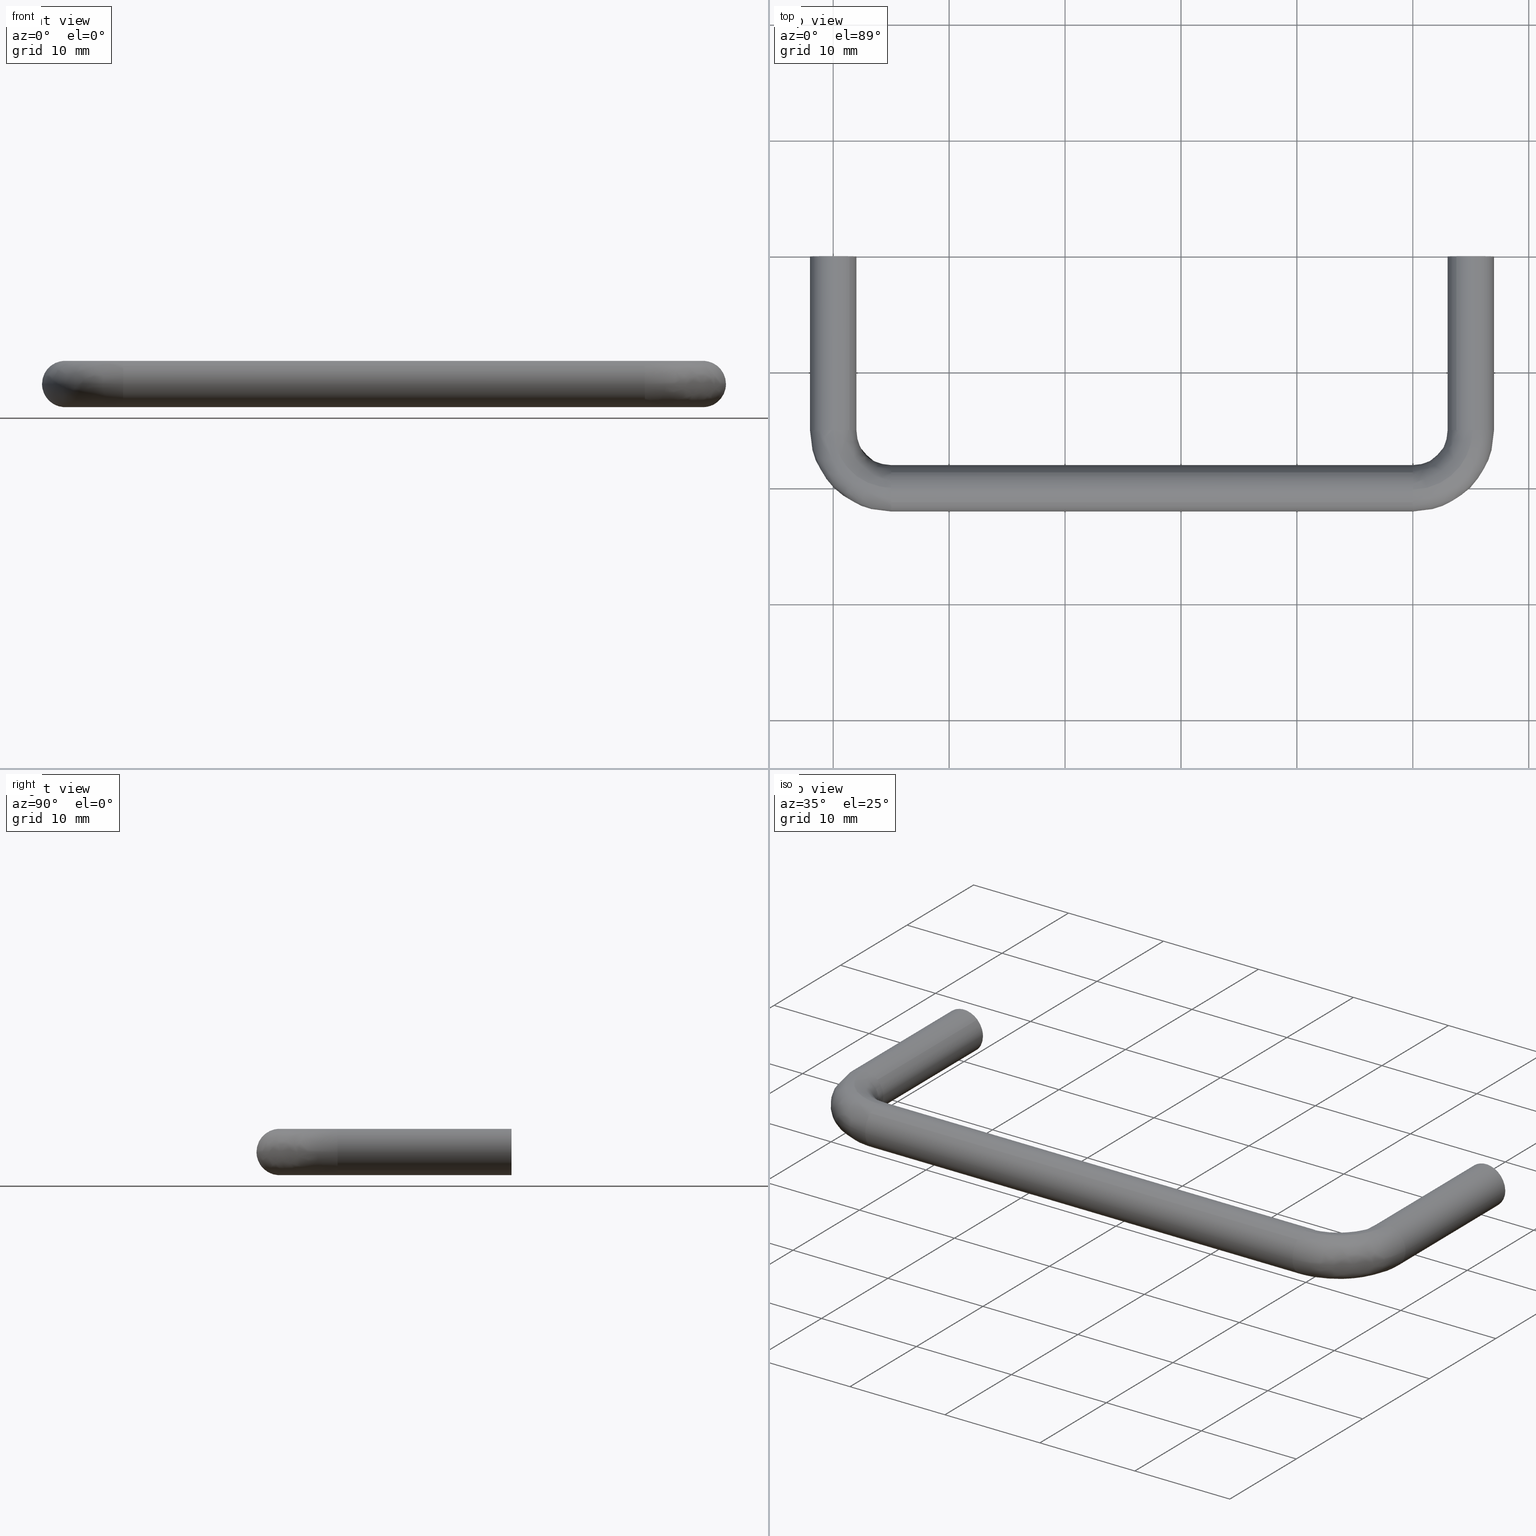
[diagram: canonical four-view strip — front | top / right | iso, engineering-drawing reading convention]
A machine part, canonical four-view strip (front | top / right | iso — engineering-drawing reading convention). The complete STEP part file that produces these views, byte-faithful:
ISO-10303-21;
HEADER;
/****************************************************************
 * Generated by software with PDE/Lib inside                    *
 * PDElib Version 4.4.1-0003, patched  Thursday August 19 11:58 *
 * International Technegroup Inc. (www.iti-oh.com)              *
 ****************************************************************/
FILE_DESCRIPTION((''),'2;1');
FILE_NAME('','2005-10-07T12:40:04',(''),(''),'','CADfix','');
FILE_SCHEMA(('AUTOMOTIVE_DESIGN'));
ENDSEC;
DATA;
#5=APPLICATION_CONTEXT('automotive design');
#6=APPLICATION_PROTOCOL_DEFINITION('Draft International Standard','automotive_design',1998,#5);
#7=PRODUCT_CONTEXT('None',#5,'mechanical');
#8=PRODUCT('pull','','None',(#7));
#9=PRODUCT_RELATED_PRODUCT_CATEGORY('part','description',(#8));
#10=PRODUCT_DEFINITION_FORMATION('None','None',#8);
#11=PRODUCT_DEFINITION_CONTEXT('part definition',#5,'design');
#12=PRODUCT_DEFINITION('None','None',#10,#11);
#18=(NAMED_UNIT(*)PLANE_ANGLE_UNIT()SI_UNIT($,.RADIAN.));
#19=DIMENSIONAL_EXPONENTS(0.0,0.0,0.0,0.0,0.0,0.0,0.0);
#20=PLANE_ANGLE_MEASURE_WITH_UNIT(PLANE_ANGLE_MEASURE(0.017453292500000),#18);
#24=(CONVERSION_BASED_UNIT('DEGREE',#20)NAMED_UNIT(#19)PLANE_ANGLE_UNIT());
#28=(NAMED_UNIT(*)SI_UNIT($,.STERADIAN.)SOLID_ANGLE_UNIT());
#32=(LENGTH_UNIT()NAMED_UNIT(*)SI_UNIT(.MILLI.,.METRE.));
#34=UNCERTAINTY_MEASURE_WITH_UNIT(LENGTH_MEASURE(0.001000000000000),#32,'DISTANCE_ACCURACY_VALUE','');
#36=(GEOMETRIC_REPRESENTATION_CONTEXT(3)GLOBAL_UNCERTAINTY_ASSIGNED_CONTEXT((#34))GLOBAL_UNIT_ASSIGNED_CONTEXT((#24,#28,#32))REPRESENTATION_CONTEXT('None','None'));
#37=AXIS2_PLACEMENT_3D('',#38,#39,#40);
#38=CARTESIAN_POINT('',(0.0,0.0,0.0));
#39=DIRECTION('',(0.0,0.0,1.0));
#40=DIRECTION('',(1.0,0.0,0.0));
#41=ADVANCED_BREP_SHAPE_REPRESENTATION('',(#37,#1355),#36);
#42=PRODUCT_DEFINITION_SHAPE('','',#12);
#43=SHAPE_DEFINITION_REPRESENTATION(#42,#41);
#44=CARTESIAN_POINT('',(-1.295992533853066,-10.250000000000000,0.101996824446199));
#45=CARTESIAN_POINT('',(-1.193995709406867,-10.250000000000002,1.397989358299265));
#46=CARTESIAN_POINT('',(0.101996824446199,-10.250000000000000,1.295992533853066));
#47=CARTESIAN_POINT('',(1.397989358299265,-10.250000000000002,1.193995709406867));
#48=CARTESIAN_POINT('',(1.295992533853066,-10.250000000000000,-0.101996824446199));
#49=CARTESIAN_POINT('',(-1.295992533853066,0.256250000000001,0.101996824446199));
#50=CARTESIAN_POINT('',(-1.193995709406867,0.256250000000001,1.397989358299265));
#51=CARTESIAN_POINT('',(0.101996824446199,0.256250000000001,1.295992533853066));
#52=CARTESIAN_POINT('',(1.397989358299265,0.256250000000001,1.193995709406867));
#53=CARTESIAN_POINT('',(1.295992533853066,0.256250000000001,-0.101996824446199));
#61=(BOUNDED_SURFACE()B_SPLINE_SURFACE(2,1,((#44,#49),(#45,#50),(#46,#51),(#47,#52),(#48,#53)),.UNSPECIFIED.,.F.,.F.,.U.)B_SPLINE_SURFACE_WITH_KNOTS((3,2,3),(2,2),(3.141592653589793,4.712388980384690,6.283185307179586),(0.0,10.506250000000000),.UNSPECIFIED.)GEOMETRIC_REPRESENTATION_ITEM()RATIONAL_B_SPLINE_SURFACE(((1.0,1.0),(0.707106781186548,0.707106781186548),(1.0,1.0),(0.707106781186548,0.707106781186548),(1.0,1.0)))REPRESENTATION_ITEM('')SURFACE());
#62=CARTESIAN_POINT('',(0.0,-10.0,1.300000000000000));
#63=VERTEX_POINT('',#62);
#64=CARTESIAN_POINT('',(-1.295992533838309,-10.0,0.101996824633710));
#65=VERTEX_POINT('',#64);
#66=CARTESIAN_POINT('',(0.0,-10.0,1.300000000000000));
#67=CARTESIAN_POINT('',(-1.201707638806856,-10.0,1.300000000000000));
#68=CARTESIAN_POINT('',(-1.295992533838309,-10.0,0.101996824633709));
#76=(BOUNDED_CURVE()B_SPLINE_CURVE(2,(#66,#67,#68),.UNSPECIFIED.,.F.,.U.)B_SPLINE_CURVE_WITH_KNOTS((3,3),(0.0,0.236331300583162),.UNSPECIFIED.)CURVE()GEOMETRIC_REPRESENTATION_ITEM()RATIONAL_B_SPLINE_CURVE((1.0,0.723120658663313,0.969723356068294))REPRESENTATION_ITEM(''));
#77=EDGE_CURVE('',#63,#65,#76,.T.);
#78=ORIENTED_EDGE('',*,*,#77,.T.);
#79=CARTESIAN_POINT('',(-1.295992533838309,-2.775558E-017,0.101996824633710));
#80=VERTEX_POINT('',#79);
#81=CARTESIAN_POINT('',(-1.295992533838309,-10.0,0.101996824633710));
#82=CARTESIAN_POINT('',(-1.295992533838309,-2.775558E-017,0.101996824633710));
#83=QUASI_UNIFORM_CURVE('',1,(#81,#82),.UNSPECIFIED.,.F.,.U.);
#84=EDGE_CURVE('',#65,#80,#83,.T.);
#85=ORIENTED_EDGE('',*,*,#84,.T.);
#86=CARTESIAN_POINT('',(0.0,0.0,1.300000000000000));
#87=VERTEX_POINT('',#86);
#88=CARTESIAN_POINT('',(0.0,0.0,1.300000000000000));
#89=CARTESIAN_POINT('',(-1.201707638806856,0.0,1.300000000000000));
#90=CARTESIAN_POINT('',(-1.295992533838309,-2.775558E-017,0.101996824633710));
#98=(BOUNDED_CURVE()B_SPLINE_CURVE(2,(#88,#89,#90),.UNSPECIFIED.,.F.,.U.)B_SPLINE_CURVE_WITH_KNOTS((3,3),(0.0,0.236331300583162),.UNSPECIFIED.)CURVE()GEOMETRIC_REPRESENTATION_ITEM()RATIONAL_B_SPLINE_CURVE((1.0,0.723120658663313,0.969723356068294))REPRESENTATION_ITEM(''));
#99=EDGE_CURVE('',#87,#80,#98,.T.);
#100=ORIENTED_EDGE('',*,*,#99,.F.);
#101=CARTESIAN_POINT('',(1.295992533838309,-2.775558E-017,-0.101996824633710));
#102=VERTEX_POINT('',#101);
#103=CARTESIAN_POINT('',(1.295992533838309,-2.775558E-017,-0.101996824633710));
#104=CARTESIAN_POINT('',(1.300000000000000,0.0,-0.051077139298351));
#105=CARTESIAN_POINT('',(1.300000000000000,0.0,0.0));
#106=CARTESIAN_POINT('',(1.300000000000000,0.0,1.300000000000000));
#107=CARTESIAN_POINT('',(0.0,0.0,1.300000000000000));
#115=(BOUNDED_CURVE()B_SPLINE_CURVE(2,(#103,#104,#105,#106,#107),.UNSPECIFIED.,.F.,.U.)B_SPLINE_CURVE_WITH_KNOTS((3,2,3),(0.736331300583162,0.750000000000000,1.0),.UNSPECIFIED.)CURVE()GEOMETRIC_REPRESENTATION_ITEM()RATIONAL_B_SPLINE_CURVE((0.969723356068293,0.983986122523235,1.0,0.707106781186548,1.0))REPRESENTATION_ITEM(''));
#116=EDGE_CURVE('',#102,#87,#115,.T.);
#117=ORIENTED_EDGE('',*,*,#116,.F.);
#118=CARTESIAN_POINT('',(1.295992533838309,-10.0,-0.101996824633710));
#119=VERTEX_POINT('',#118);
#120=CARTESIAN_POINT('',(1.295992533838309,-10.0,-0.101996824633710));
#121=CARTESIAN_POINT('',(1.295992533838309,-2.775558E-017,-0.101996824633710));
#122=QUASI_UNIFORM_CURVE('',1,(#120,#121),.UNSPECIFIED.,.F.,.U.);
#123=EDGE_CURVE('',#119,#102,#122,.T.);
#124=ORIENTED_EDGE('',*,*,#123,.F.);
#125=CARTESIAN_POINT('',(1.295992533838309,-10.0,-0.101996824633710));
#126=CARTESIAN_POINT('',(1.300000000000000,-10.0,-0.051077139298351));
#127=CARTESIAN_POINT('',(1.300000000000000,-10.0,0.0));
#128=CARTESIAN_POINT('',(1.300000000000000,-10.000000000000002,1.300000000000000));
#129=CARTESIAN_POINT('',(0.0,-10.0,1.300000000000000));
#137=(BOUNDED_CURVE()B_SPLINE_CURVE(2,(#125,#126,#127,#128,#129),.UNSPECIFIED.,.F.,.U.)B_SPLINE_CURVE_WITH_KNOTS((3,2,3),(0.736331300583162,0.750000000000000,1.0),.UNSPECIFIED.)CURVE()GEOMETRIC_REPRESENTATION_ITEM()RATIONAL_B_SPLINE_CURVE((0.969723356068293,0.983986122523235,1.0,0.707106781186548,1.0))REPRESENTATION_ITEM(''));
#138=EDGE_CURVE('',#119,#63,#137,.T.);
#139=ORIENTED_EDGE('',*,*,#138,.T.);
#140=EDGE_LOOP('',(#78,#85,#100,#117,#124,#139));
#141=FACE_OUTER_BOUND('',#140,.T.);
#142=ADVANCED_FACE('',(#141),#61,.F.);
#143=CARTESIAN_POINT('',(1.295992533853066,-10.250000000000000,-0.101996824446199));
#144=CARTESIAN_POINT('',(1.193995709406867,-10.250000000000002,-1.397989358299265));
#145=CARTESIAN_POINT('',(-0.101996824446199,-10.250000000000000,-1.295992533853066));
#146=CARTESIAN_POINT('',(-1.397989358299265,-10.250000000000002,-1.193995709406867));
#147=CARTESIAN_POINT('',(-1.295992533853066,-10.250000000000000,0.101996824446199));
#148=CARTESIAN_POINT('',(1.295992533853066,0.256250000000001,-0.101996824446199));
#149=CARTESIAN_POINT('',(1.193995709406867,0.256250000000001,-1.397989358299265));
#150=CARTESIAN_POINT('',(-0.101996824446199,0.256250000000001,-1.295992533853066));
#151=CARTESIAN_POINT('',(-1.397989358299265,0.256250000000001,-1.193995709406867));
#152=CARTESIAN_POINT('',(-1.295992533853066,0.256250000000001,0.101996824446199));
#160=(BOUNDED_SURFACE()B_SPLINE_SURFACE(2,1,((#143,#148),(#144,#149),(#145,#150),(#146,#151),(#147,#152)),.UNSPECIFIED.,.F.,.F.,.U.)B_SPLINE_SURFACE_WITH_KNOTS((3,2,3),(2,2),(0.0,1.570796326794897,3.141592653589793),(0.0,10.506250000000000),.UNSPECIFIED.)GEOMETRIC_REPRESENTATION_ITEM()RATIONAL_B_SPLINE_SURFACE(((1.0,1.0),(0.707106781186548,0.707106781186548),(1.0,1.0),(0.707106781186548,0.707106781186548),(1.0,1.0)))REPRESENTATION_ITEM('')SURFACE());
#161=CARTESIAN_POINT('',(0.0,-10.0,-1.300000000000000));
#162=VERTEX_POINT('',#161);
#163=CARTESIAN_POINT('',(-1.295992533838309,-10.0,0.101996824633709));
#164=CARTESIAN_POINT('',(-1.300000000000000,-10.000000000000002,0.051077139298351));
#165=CARTESIAN_POINT('',(-1.300000000000000,-10.0,0.0));
#166=CARTESIAN_POINT('',(-1.300000000000000,-10.000000000000002,-1.300000000000000));
#167=CARTESIAN_POINT('',(0.0,-10.0,-1.300000000000000));
#175=(BOUNDED_CURVE()B_SPLINE_CURVE(2,(#163,#164,#165,#166,#167),.UNSPECIFIED.,.F.,.U.)B_SPLINE_CURVE_WITH_KNOTS((3,2,3),(0.236331300583162,0.250000000000000,0.500000000000000),.UNSPECIFIED.)CURVE()GEOMETRIC_REPRESENTATION_ITEM()RATIONAL_B_SPLINE_CURVE((0.969723356068293,0.983986122523235,1.0,0.707106781186548,1.0))REPRESENTATION_ITEM(''));
#176=EDGE_CURVE('',#65,#162,#175,.T.);
#177=ORIENTED_EDGE('',*,*,#176,.T.);
#178=CARTESIAN_POINT('',(0.0,-10.0,-1.300000000000000));
#179=CARTESIAN_POINT('',(1.201707638806853,-10.0,-1.300000000000000));
#180=CARTESIAN_POINT('',(1.295992533838309,-10.0,-0.101996824633710));
#188=(BOUNDED_CURVE()B_SPLINE_CURVE(2,(#178,#179,#180),.UNSPECIFIED.,.F.,.U.)B_SPLINE_CURVE_WITH_KNOTS((3,3),(0.500000000000000,0.736331300583161),.UNSPECIFIED.)CURVE()GEOMETRIC_REPRESENTATION_ITEM()RATIONAL_B_SPLINE_CURVE((1.0,0.723120658663313,0.969723356068293))REPRESENTATION_ITEM(''));
#189=EDGE_CURVE('',#162,#119,#188,.T.);
#190=ORIENTED_EDGE('',*,*,#189,.T.);
#191=ORIENTED_EDGE('',*,*,#123,.T.);
#192=CARTESIAN_POINT('',(0.0,0.0,-1.300000000000000));
#193=VERTEX_POINT('',#192);
#194=CARTESIAN_POINT('',(0.0,0.0,-1.300000000000000));
#195=CARTESIAN_POINT('',(1.201707638806853,0.0,-1.300000000000000));
#196=CARTESIAN_POINT('',(1.295992533838309,-2.775558E-017,-0.101996824633710));
#204=(BOUNDED_CURVE()B_SPLINE_CURVE(2,(#194,#195,#196),.UNSPECIFIED.,.F.,.U.)B_SPLINE_CURVE_WITH_KNOTS((3,3),(0.500000000000000,0.736331300583161),.UNSPECIFIED.)CURVE()GEOMETRIC_REPRESENTATION_ITEM()RATIONAL_B_SPLINE_CURVE((1.0,0.723120658663313,0.969723356068293))REPRESENTATION_ITEM(''));
#205=EDGE_CURVE('',#193,#102,#204,.T.);
#206=ORIENTED_EDGE('',*,*,#205,.F.);
#207=CARTESIAN_POINT('',(-1.295992533838309,-2.775558E-017,0.101996824633710));
#208=CARTESIAN_POINT('',(-1.300000000000000,0.0,0.051077139298351));
#209=CARTESIAN_POINT('',(-1.300000000000000,0.0,0.0));
#210=CARTESIAN_POINT('',(-1.300000000000000,0.0,-1.300000000000000));
#211=CARTESIAN_POINT('',(0.0,0.0,-1.300000000000000));
#219=(BOUNDED_CURVE()B_SPLINE_CURVE(2,(#207,#208,#209,#210,#211),.UNSPECIFIED.,.F.,.U.)B_SPLINE_CURVE_WITH_KNOTS((3,2,3),(0.236331300583162,0.250000000000000,0.500000000000000),.UNSPECIFIED.)CURVE()GEOMETRIC_REPRESENTATION_ITEM()RATIONAL_B_SPLINE_CURVE((0.969723356068293,0.983986122523235,1.0,0.707106781186548,1.0))REPRESENTATION_ITEM(''));
#220=EDGE_CURVE('',#80,#193,#219,.T.);
#221=ORIENTED_EDGE('',*,*,#220,.F.);
#222=ORIENTED_EDGE('',*,*,#84,.F.);
#223=EDGE_LOOP('',(#177,#190,#191,#206,#221,#222));
#224=FACE_OUTER_BOUND('',#223,.T.);
#225=ADVANCED_FACE('',(#224),#160,.F.);
#226=CARTESIAN_POINT('',(53.704007466146933,-10.250000000000000,0.101996824446199));
#227=CARTESIAN_POINT('',(53.806004290593116,-10.250000000000002,1.397989358299265));
#228=CARTESIAN_POINT('',(55.101996824446204,-10.250000000000000,1.295992533853066));
#229=CARTESIAN_POINT('',(56.397989358299249,-10.250000000000002,1.193995709406867));
#230=CARTESIAN_POINT('',(56.295992533853067,-10.250000000000000,-0.101996824446199));
#231=CARTESIAN_POINT('',(53.704007466146933,0.256250000000001,0.101996824446199));
#232=CARTESIAN_POINT('',(53.806004290593116,0.256250000000001,1.397989358299265));
#233=CARTESIAN_POINT('',(55.101996824446204,0.256250000000001,1.295992533853066));
#234=CARTESIAN_POINT('',(56.397989358299249,0.256250000000001,1.193995709406867));
#235=CARTESIAN_POINT('',(56.295992533853067,0.256250000000001,-0.101996824446199));
#243=(BOUNDED_SURFACE()B_SPLINE_SURFACE(2,1,((#226,#231),(#227,#232),(#228,#233),(#229,#234),(#230,#235)),.UNSPECIFIED.,.F.,.F.,.U.)B_SPLINE_SURFACE_WITH_KNOTS((3,2,3),(2,2),(3.141592653589793,4.712388980384690,6.283185307179586),(0.0,10.506250000000000),.UNSPECIFIED.)GEOMETRIC_REPRESENTATION_ITEM()RATIONAL_B_SPLINE_SURFACE(((1.0,1.0),(0.707106781186548,0.707106781186548),(1.0,1.0),(0.707106781186548,0.707106781186548),(1.0,1.0)))REPRESENTATION_ITEM('')SURFACE());
#244=CARTESIAN_POINT('',(55.0,-10.0,1.300000000000000));
#245=VERTEX_POINT('',#244);
#246=CARTESIAN_POINT('',(53.704007466161691,-10.0,0.101996824633710));
#247=VERTEX_POINT('',#246);
#248=CARTESIAN_POINT('',(55.0,-10.0,1.300000000000000));
#249=CARTESIAN_POINT('',(53.798292361193141,-10.0,1.300000000000000));
#250=CARTESIAN_POINT('',(53.704007466161698,-10.0,0.101996824633710));
#258=(BOUNDED_CURVE()B_SPLINE_CURVE(2,(#248,#249,#250),.UNSPECIFIED.,.F.,.U.)B_SPLINE_CURVE_WITH_KNOTS((3,3),(0.0,0.236331300583162),.UNSPECIFIED.)CURVE()GEOMETRIC_REPRESENTATION_ITEM()RATIONAL_B_SPLINE_CURVE((1.0,0.723120658663313,0.969723356068294))REPRESENTATION_ITEM(''));
#259=EDGE_CURVE('',#245,#247,#258,.T.);
#260=ORIENTED_EDGE('',*,*,#259,.T.);
#261=CARTESIAN_POINT('',(53.704007466161691,-2.775558E-017,0.101996824633710));
#262=VERTEX_POINT('',#261);
#263=CARTESIAN_POINT('',(53.704007466161691,-10.0,0.101996824633710));
#264=CARTESIAN_POINT('',(53.704007466161691,-2.775558E-017,0.101996824633710));
#265=QUASI_UNIFORM_CURVE('',1,(#263,#264),.UNSPECIFIED.,.F.,.U.);
#266=EDGE_CURVE('',#247,#262,#265,.T.);
#267=ORIENTED_EDGE('',*,*,#266,.T.);
#268=CARTESIAN_POINT('',(55.0,0.0,1.300000000000000));
#269=VERTEX_POINT('',#268);
#270=CARTESIAN_POINT('',(55.0,0.0,1.300000000000000));
#271=CARTESIAN_POINT('',(53.798292361193141,0.0,1.300000000000000));
#272=CARTESIAN_POINT('',(53.704007466161691,-2.775558E-017,0.101996824633710));
#280=(BOUNDED_CURVE()B_SPLINE_CURVE(2,(#270,#271,#272),.UNSPECIFIED.,.F.,.U.)B_SPLINE_CURVE_WITH_KNOTS((3,3),(0.0,0.236331300583162),.UNSPECIFIED.)CURVE()GEOMETRIC_REPRESENTATION_ITEM()RATIONAL_B_SPLINE_CURVE((1.0,0.723120658663313,0.969723356068293))REPRESENTATION_ITEM(''));
#281=EDGE_CURVE('',#269,#262,#280,.T.);
#282=ORIENTED_EDGE('',*,*,#281,.F.);
#283=CARTESIAN_POINT('',(56.295992533838323,-2.775558E-017,-0.101996824633710));
#284=VERTEX_POINT('',#283);
#285=CARTESIAN_POINT('',(56.295992533838309,-2.775558E-017,-0.101996824633710));
#286=CARTESIAN_POINT('',(56.300000000000011,0.0,-0.051077139298351));
#287=CARTESIAN_POINT('',(56.299999999999997,0.0,0.0));
#288=CARTESIAN_POINT('',(56.300000000000018,0.0,1.300000000000000));
#289=CARTESIAN_POINT('',(55.0,0.0,1.300000000000000));
#297=(BOUNDED_CURVE()B_SPLINE_CURVE(2,(#285,#286,#287,#288,#289),.UNSPECIFIED.,.F.,.U.)B_SPLINE_CURVE_WITH_KNOTS((3,2,3),(0.736331300583162,0.750000000000000,1.0),.UNSPECIFIED.)CURVE()GEOMETRIC_REPRESENTATION_ITEM()RATIONAL_B_SPLINE_CURVE((0.969723356068293,0.983986122523235,1.0,0.707106781186548,1.0))REPRESENTATION_ITEM(''));
#298=EDGE_CURVE('',#284,#269,#297,.T.);
#299=ORIENTED_EDGE('',*,*,#298,.F.);
#300=CARTESIAN_POINT('',(56.295992533838309,-10.0,-0.101996824633709));
#301=VERTEX_POINT('',#300);
#302=CARTESIAN_POINT('',(56.295992533838309,-10.0,-0.101996824633709));
#303=CARTESIAN_POINT('',(56.295992533838323,-2.775558E-017,-0.101996824633710));
#304=QUASI_UNIFORM_CURVE('',1,(#302,#303),.UNSPECIFIED.,.F.,.U.);
#305=EDGE_CURVE('',#301,#284,#304,.T.);
#306=ORIENTED_EDGE('',*,*,#305,.F.);
#307=CARTESIAN_POINT('',(56.295992533838309,-9.999999999999998,-0.101996824633709));
#308=CARTESIAN_POINT('',(56.300000000000004,-9.999999999999998,-0.051077139298351));
#309=CARTESIAN_POINT('',(56.299999999999997,-10.0,0.0));
#310=CARTESIAN_POINT('',(56.300000000000018,-10.000000000000002,1.300000000000000));
#311=CARTESIAN_POINT('',(55.0,-10.0,1.300000000000000));
#319=(BOUNDED_CURVE()B_SPLINE_CURVE(2,(#307,#308,#309,#310,#311),.UNSPECIFIED.,.F.,.U.)B_SPLINE_CURVE_WITH_KNOTS((3,2,3),(0.736331300583162,0.750000000000000,1.0),.UNSPECIFIED.)CURVE()GEOMETRIC_REPRESENTATION_ITEM()RATIONAL_B_SPLINE_CURVE((0.969723356068294,0.983986122523235,1.0,0.707106781186548,1.0))REPRESENTATION_ITEM(''));
#320=EDGE_CURVE('',#301,#245,#319,.T.);
#321=ORIENTED_EDGE('',*,*,#320,.T.);
#322=EDGE_LOOP('',(#260,#267,#282,#299,#306,#321));
#323=FACE_OUTER_BOUND('',#322,.T.);
#324=ADVANCED_FACE('',(#323),#243,.F.);
#325=CARTESIAN_POINT('',(56.295992533853067,-10.250000000000000,-0.101996824446199));
#326=CARTESIAN_POINT('',(56.193995709406870,-10.250000000000002,-1.397989358299265));
#327=CARTESIAN_POINT('',(54.898003175553796,-10.250000000000000,-1.295992533853066));
#328=CARTESIAN_POINT('',(53.602010641700744,-10.250000000000002,-1.193995709406867));
#329=CARTESIAN_POINT('',(53.704007466146933,-10.250000000000000,0.101996824446199));
#330=CARTESIAN_POINT('',(56.295992533853067,0.256250000000001,-0.101996824446199));
#331=CARTESIAN_POINT('',(56.193995709406870,0.256250000000001,-1.397989358299265));
#332=CARTESIAN_POINT('',(54.898003175553796,0.256250000000001,-1.295992533853066));
#333=CARTESIAN_POINT('',(53.602010641700744,0.256250000000001,-1.193995709406867));
#334=CARTESIAN_POINT('',(53.704007466146933,0.256250000000001,0.101996824446199));
#342=(BOUNDED_SURFACE()B_SPLINE_SURFACE(2,1,((#325,#330),(#326,#331),(#327,#332),(#328,#333),(#329,#334)),.UNSPECIFIED.,.F.,.F.,.U.)B_SPLINE_SURFACE_WITH_KNOTS((3,2,3),(2,2),(0.0,1.570796326794897,3.141592653589793),(0.0,10.506250000000000),.UNSPECIFIED.)GEOMETRIC_REPRESENTATION_ITEM()RATIONAL_B_SPLINE_SURFACE(((1.0,1.0),(0.707106781186548,0.707106781186548),(1.0,1.0),(0.707106781186548,0.707106781186548),(1.0,1.0)))REPRESENTATION_ITEM('')SURFACE());
#343=CARTESIAN_POINT('',(55.0,-10.0,-1.300000000000000));
#344=VERTEX_POINT('',#343);
#345=CARTESIAN_POINT('',(53.704007466161691,-10.0,0.101996824633710));
#346=CARTESIAN_POINT('',(53.700000000000010,-10.0,0.051077139298351));
#347=CARTESIAN_POINT('',(53.700000000000003,-10.0,0.0));
#348=CARTESIAN_POINT('',(53.699999999999996,-10.000000000000002,-1.300000000000000));
#349=CARTESIAN_POINT('',(55.0,-10.0,-1.300000000000000));
#357=(BOUNDED_CURVE()B_SPLINE_CURVE(2,(#345,#346,#347,#348,#349),.UNSPECIFIED.,.F.,.U.)B_SPLINE_CURVE_WITH_KNOTS((3,2,3),(0.236331300583162,0.250000000000000,0.500000000000000),.UNSPECIFIED.)CURVE()GEOMETRIC_REPRESENTATION_ITEM()RATIONAL_B_SPLINE_CURVE((0.969723356068293,0.983986122523235,1.0,0.707106781186548,1.0))REPRESENTATION_ITEM(''));
#358=EDGE_CURVE('',#247,#344,#357,.T.);
#359=ORIENTED_EDGE('',*,*,#358,.T.);
#360=CARTESIAN_POINT('',(55.0,-10.0,-1.300000000000000));
#361=CARTESIAN_POINT('',(56.201707638806873,-10.0,-1.300000000000000));
#362=CARTESIAN_POINT('',(56.295992533838302,-10.0,-0.101996824633709));
#370=(BOUNDED_CURVE()B_SPLINE_CURVE(2,(#360,#361,#362),.UNSPECIFIED.,.F.,.U.)B_SPLINE_CURVE_WITH_KNOTS((3,3),(0.500000000000000,0.736331300583161),.UNSPECIFIED.)CURVE()GEOMETRIC_REPRESENTATION_ITEM()RATIONAL_B_SPLINE_CURVE((1.0,0.723120658663313,0.969723356068293))REPRESENTATION_ITEM(''));
#371=EDGE_CURVE('',#344,#301,#370,.T.);
#372=ORIENTED_EDGE('',*,*,#371,.T.);
#373=ORIENTED_EDGE('',*,*,#305,.T.);
#374=CARTESIAN_POINT('',(55.0,0.0,-1.300000000000000));
#375=VERTEX_POINT('',#374);
#376=CARTESIAN_POINT('',(55.0,0.0,-1.300000000000000));
#377=CARTESIAN_POINT('',(56.201707638806873,0.0,-1.300000000000000));
#378=CARTESIAN_POINT('',(56.295992533838316,-2.775558E-017,-0.101996824633710));
#386=(BOUNDED_CURVE()B_SPLINE_CURVE(2,(#376,#377,#378),.UNSPECIFIED.,.F.,.U.)B_SPLINE_CURVE_WITH_KNOTS((3,3),(0.500000000000000,0.736331300583161),.UNSPECIFIED.)CURVE()GEOMETRIC_REPRESENTATION_ITEM()RATIONAL_B_SPLINE_CURVE((1.0,0.723120658663313,0.969723356068293))REPRESENTATION_ITEM(''));
#387=EDGE_CURVE('',#375,#284,#386,.T.);
#388=ORIENTED_EDGE('',*,*,#387,.F.);
#389=CARTESIAN_POINT('',(53.704007466161691,-2.775558E-017,0.101996824633710));
#390=CARTESIAN_POINT('',(53.699999999999996,0.0,0.051077139298352));
#391=CARTESIAN_POINT('',(53.700000000000003,0.0,0.0));
#392=CARTESIAN_POINT('',(53.699999999999996,0.0,-1.300000000000000));
#393=CARTESIAN_POINT('',(55.0,0.0,-1.300000000000000));
#401=(BOUNDED_CURVE()B_SPLINE_CURVE(2,(#389,#390,#391,#392,#393),.UNSPECIFIED.,.F.,.U.)B_SPLINE_CURVE_WITH_KNOTS((3,2,3),(0.236331300583162,0.250000000000000,0.500000000000000),.UNSPECIFIED.)CURVE()GEOMETRIC_REPRESENTATION_ITEM()RATIONAL_B_SPLINE_CURVE((0.969723356068293,0.983986122523235,1.0,0.707106781186548,1.0))REPRESENTATION_ITEM(''));
#402=EDGE_CURVE('',#262,#375,#401,.T.);
#403=ORIENTED_EDGE('',*,*,#402,.F.);
#404=ORIENTED_EDGE('',*,*,#266,.F.);
#405=EDGE_LOOP('',(#359,#372,#373,#388,#403,#404));
#406=FACE_OUTER_BOUND('',#405,.T.);
#407=ADVANCED_FACE('',(#406),#342,.F.);
#408=CARTESIAN_POINT('',(56.267035875925451,-15.375000000544633,-1.547711471553013));
#409=CARTESIAN_POINT('',(56.256064708424859,-15.375000000544629,-1.556438332230732));
#410=CARTESIAN_POINT('',(54.679812959570413,-15.375000000544643,-2.810245586980066));
#411=CARTESIAN_POINT('',(53.434783686295170,-15.375000000544640,-1.245029273275238));
#412=CARTESIAN_POINT('',(52.189754413019926,-15.375000000544643,0.320187040429590));
#413=CARTESIAN_POINT('',(53.766007506467709,-15.375000000544633,1.573995364716730));
#414=CARTESIAN_POINT('',(53.776980002922251,-15.375000000544627,1.582723282492192));
#415=CARTESIAN_POINT('',(56.267035875925451,0.384375000013625,-1.547711471553013));
#416=CARTESIAN_POINT('',(56.256064708424859,0.384375000013625,-1.556438332230732));
#417=CARTESIAN_POINT('',(54.679812959570413,0.384375000013625,-2.810245586980066));
#418=CARTESIAN_POINT('',(53.434783686295170,0.384375000013625,-1.245029273275238));
#419=CARTESIAN_POINT('',(52.189754413019926,0.384375000013625,0.320187040429590));
#420=CARTESIAN_POINT('',(53.766007506467709,0.384375000013625,1.573995364716730));
#421=CARTESIAN_POINT('',(53.776980002922251,0.384375000013625,1.582723282492192));
#429=(BOUNDED_SURFACE()B_SPLINE_SURFACE(2,1,((#408,#415),(#409,#416),(#410,#417),(#411,#418),(#412,#419),(#413,#420),(#414,#421)),.UNSPECIFIED.,.F.,.F.,.U.)B_SPLINE_SURFACE_WITH_KNOTS((3,1,2,1,3),(2,2),(0.0,0.033137104497271,3.346845603482031,6.660554102466790,6.693695256323744),(0.0,15.759375000558260),.UNSPECIFIED.)GEOMETRIC_REPRESENTATION_ITEM()RATIONAL_B_SPLINE_SURFACE(((1.005857867824727,1.005857867824727),(1.002928933912364,1.002928933912364),(0.707106781186548,0.707106781186548),(1.0,1.0),(0.707106781186548,0.707106781186548),(1.002929291828575,1.002929291828575),(1.005858583657150,1.005858583657150)))REPRESENTATION_ITEM('')SURFACE());
#430=CARTESIAN_POINT('',(54.974867919853978,-15.000000000286191,-1.999842088402865));
#431=VERTEX_POINT('',#430);
#432=CARTESIAN_POINT('',(56.245029273276089,-15.0,-1.565216313704150));
#433=VERTEX_POINT('',#432);
#434=CARTESIAN_POINT('',(54.974867919853970,-15.000000000286194,-1.999842088402865));
#435=CARTESIAN_POINT('',(54.987433463636869,-14.999999999999998,-2.0));
#436=CARTESIAN_POINT('',(55.0,-15.0,-2.0));
#437=CARTESIAN_POINT('',(55.698431266844302,-14.999999999999996,-2.000000000000000));
#438=CARTESIAN_POINT('',(56.245029273276096,-15.000000000000002,-1.565216313704150));
#446=(BOUNDED_CURVE()B_SPLINE_CURVE(2,(#434,#435,#436,#437,#438),.UNSPECIFIED.,.F.,.U.)B_SPLINE_CURVE_WITH_KNOTS((3,2,3),(0.247784295855014,0.250000000000000,0.357863877391611),.UNSPECIFIED.)CURVE()GEOMETRIC_REPRESENTATION_ITEM()RATIONAL_B_SPLINE_CURVE((0.994854295490463,0.997404141124148,1.0,0.873629607028286,0.856305618644017))REPRESENTATION_ITEM(''));
#447=EDGE_CURVE('',#431,#433,#446,.T.);
#448=ORIENTED_EDGE('',*,*,#447,.F.);
#449=CARTESIAN_POINT('',(53.0,-15.0,0.0));
#450=VERTEX_POINT('',#449);
#451=CARTESIAN_POINT('',(53.0,-15.0,0.0));
#452=CARTESIAN_POINT('',(53.000000000000007,-15.000000000000004,-1.975023859065361));
#453=CARTESIAN_POINT('',(54.974867919853985,-15.000000000286191,-1.999842088402865));
#461=(BOUNDED_CURVE()B_SPLINE_CURVE(2,(#451,#452,#453),.UNSPECIFIED.,.F.,.U.)B_SPLINE_CURVE_WITH_KNOTS((3,3),(0.0,0.247784295855015),.UNSPECIFIED.)CURVE()GEOMETRIC_REPRESENTATION_ITEM()RATIONAL_B_SPLINE_CURVE((1.0,0.709702640062400,0.994854295490464))REPRESENTATION_ITEM(''));
#462=EDGE_CURVE('',#450,#431,#461,.T.);
#463=ORIENTED_EDGE('',*,*,#462,.F.);
#464=CARTESIAN_POINT('',(53.754970726723911,-15.0,1.565216313704150));
#465=VERTEX_POINT('',#464);
#466=CARTESIAN_POINT('',(53.754970726723919,-14.999999999999998,1.565216313704151));
#467=CARTESIAN_POINT('',(53.000000000000007,-14.999999999999996,0.964685481633799));
#468=CARTESIAN_POINT('',(53.0,-15.0,0.0));
#476=(BOUNDED_CURVE()B_SPLINE_CURVE(2,(#466,#467,#468),.UNSPECIFIED.,.F.,.U.)B_SPLINE_CURVE_WITH_KNOTS((3,3),(0.857863877391610,1.0),.UNSPECIFIED.)CURVE()GEOMETRIC_REPRESENTATION_ITEM()RATIONAL_B_SPLINE_CURVE((0.856305618644017,0.833477174158261,1.0))REPRESENTATION_ITEM(''));
#477=EDGE_CURVE('',#465,#450,#476,.T.);
#478=ORIENTED_EDGE('',*,*,#477,.F.);
#479=CARTESIAN_POINT('',(53.754973431692719,5.911938E-015,1.565218465325864));
#480=VERTEX_POINT('',#479);
#481=CARTESIAN_POINT('',(53.754970726723911,-15.0,1.565216313704150));
#482=CARTESIAN_POINT('',(53.754973431692719,5.911938E-015,1.565218465325864));
#483=QUASI_UNIFORM_CURVE('',1,(#481,#482),.UNSPECIFIED.,.F.,.U.);
#484=EDGE_CURVE('',#465,#480,#483,.T.);
#485=ORIENTED_EDGE('',*,*,#484,.T.);
#486=CARTESIAN_POINT('',(53.0,6.938894E-015,0.0));
#487=VERTEX_POINT('',#486);
#488=CARTESIAN_POINT('',(53.754973431692726,5.911938E-015,1.565218465325864));
#489=CARTESIAN_POINT('',(52.999999999999986,6.938894E-015,0.964687611876022));
#490=CARTESIAN_POINT('',(53.0,6.938894E-015,0.0));
#498=(BOUNDED_CURVE()B_SPLINE_CURVE(2,(#488,#489,#490),.UNSPECIFIED.,.F.,.U.)B_SPLINE_CURVE_WITH_KNOTS((3,3),(0.857863615789489,1.0),.UNSPECIFIED.)CURVE()GEOMETRIC_REPRESENTATION_ITEM()RATIONAL_B_SPLINE_CURVE((0.856305702676352,0.833476867672312,1.0))REPRESENTATION_ITEM(''));
#499=EDGE_CURVE('',#480,#487,#498,.T.);
#500=ORIENTED_EDGE('',*,*,#499,.T.);
#501=CARTESIAN_POINT('',(56.245026568307281,6.022960E-015,-1.565218465325866));
#502=VERTEX_POINT('',#501);
#503=CARTESIAN_POINT('',(53.0,6.938894E-015,0.0));
#504=CARTESIAN_POINT('',(53.0,6.938894E-015,-2.000000000000000));
#505=CARTESIAN_POINT('',(55.0,6.938894E-015,-2.0));
#506=CARTESIAN_POINT('',(55.698429327917516,6.938894E-015,-2.000000000000000));
#507=CARTESIAN_POINT('',(56.245026568307289,6.022960E-015,-1.565218465325865));
#515=(BOUNDED_CURVE()B_SPLINE_CURVE(2,(#503,#504,#505,#506,#507),.UNSPECIFIED.,.F.,.U.)B_SPLINE_CURVE_WITH_KNOTS((3,2,3),(0.0,0.250000000000000,0.357863615789489),.UNSPECIFIED.)CURVE()GEOMETRIC_REPRESENTATION_ITEM()RATIONAL_B_SPLINE_CURVE((1.0,0.707106781186548,1.0,0.873629913514236,0.856305702676352))REPRESENTATION_ITEM(''));
#516=EDGE_CURVE('',#487,#502,#515,.T.);
#517=ORIENTED_EDGE('',*,*,#516,.T.);
#518=CARTESIAN_POINT('',(56.245029273276089,-15.0,-1.565216313704150));
#519=CARTESIAN_POINT('',(56.245026568307281,6.022960E-015,-1.565218465325866));
#520=QUASI_UNIFORM_CURVE('',1,(#518,#519),.UNSPECIFIED.,.F.,.U.);
#521=EDGE_CURVE('',#433,#502,#520,.T.);
#522=ORIENTED_EDGE('',*,*,#521,.F.);
#523=EDGE_LOOP('',(#448,#463,#478,#485,#500,#517,#522));
#524=FACE_OUTER_BOUND('',#523,.T.);
#525=ADVANCED_FACE('',(#524),#429,.T.);
#526=CARTESIAN_POINT('',(53.732964124074577,-15.375000000544643,1.547711471553018));
#527=CARTESIAN_POINT('',(53.743935291575085,-15.375000000544633,1.556438332230735));
#528=CARTESIAN_POINT('',(55.320187040429609,-15.375000000544643,2.810245586980066));
#529=CARTESIAN_POINT('',(56.565216313704830,-15.375000000544640,1.245029273275238));
#530=CARTESIAN_POINT('',(57.810245586980066,-15.375000000544643,-0.320187040429590));
#531=CARTESIAN_POINT('',(56.233992493532305,-15.375000000544636,-1.573995364716701));
#532=CARTESIAN_POINT('',(56.223019997077792,-15.375000000544635,-1.582723282492135));
#533=CARTESIAN_POINT('',(53.732964124074577,0.384375000013625,1.547711471553018));
#534=CARTESIAN_POINT('',(53.743935291575085,0.384375000013625,1.556438332230735));
#535=CARTESIAN_POINT('',(55.320187040429609,0.384375000013625,2.810245586980066));
#536=CARTESIAN_POINT('',(56.565216313704830,0.384375000013625,1.245029273275238));
#537=CARTESIAN_POINT('',(57.810245586980066,0.384375000013625,-0.320187040429590));
#538=CARTESIAN_POINT('',(56.233992493532305,0.384375000013625,-1.573995364716701));
#539=CARTESIAN_POINT('',(56.223019997077792,0.384375000013625,-1.582723282492135));
#547=(BOUNDED_SURFACE()B_SPLINE_SURFACE(2,1,((#526,#533),(#527,#534),(#528,#535),(#529,#536),(#530,#537),(#531,#538),(#532,#539)),.UNSPECIFIED.,.F.,.F.,.U.)B_SPLINE_SURFACE_WITH_KNOTS((3,1,2,1,3),(2,2),(0.0,0.033137104497263,3.346845603482031,6.660554102466799,6.693695256323641),(0.0,15.759375000558260),.UNSPECIFIED.)GEOMETRIC_REPRESENTATION_ITEM()RATIONAL_B_SPLINE_SURFACE(((1.005857867824725,1.005857867824725),(1.002928933912363,1.002928933912363),(0.707106781186548,0.707106781186548),(1.0,1.0),(0.707106781186548,0.707106781186548),(1.002929291828565,1.002929291828565),(1.005858583657130,1.005858583657130)))REPRESENTATION_ITEM('')SURFACE());
#548=CARTESIAN_POINT('',(57.0,-15.0,0.0));
#549=VERTEX_POINT('',#548);
#550=CARTESIAN_POINT('',(56.245029273276089,-14.999999999999998,-1.565216313704149));
#551=CARTESIAN_POINT('',(56.999999999999993,-14.999999999999995,-0.964685481633798));
#552=CARTESIAN_POINT('',(57.0,-15.0,0.0));
#560=(BOUNDED_CURVE()B_SPLINE_CURVE(2,(#550,#551,#552),.UNSPECIFIED.,.F.,.U.)B_SPLINE_CURVE_WITH_KNOTS((3,3),(0.357863877391610,0.500000000000000),.UNSPECIFIED.)CURVE()GEOMETRIC_REPRESENTATION_ITEM()RATIONAL_B_SPLINE_CURVE((0.856305618644017,0.833477174158261,1.0))REPRESENTATION_ITEM(''));
#561=EDGE_CURVE('',#433,#549,#560,.T.);
#562=ORIENTED_EDGE('',*,*,#561,.F.);
#563=ORIENTED_EDGE('',*,*,#521,.T.);
#564=CARTESIAN_POINT('',(57.0,6.938894E-015,0.0));
#565=VERTEX_POINT('',#564);
#566=CARTESIAN_POINT('',(56.245026568307281,6.022960E-015,-1.565218465325865));
#567=CARTESIAN_POINT('',(57.000000000000014,6.938894E-015,-0.964687611876027));
#568=CARTESIAN_POINT('',(57.0,6.938894E-015,0.0));
#576=(BOUNDED_CURVE()B_SPLINE_CURVE(2,(#566,#567,#568),.UNSPECIFIED.,.F.,.U.)B_SPLINE_CURVE_WITH_KNOTS((3,3),(0.357863615789489,0.500000000000000),.UNSPECIFIED.)CURVE()GEOMETRIC_REPRESENTATION_ITEM()RATIONAL_B_SPLINE_CURVE((0.856305702676352,0.833476867672311,1.0))REPRESENTATION_ITEM(''));
#577=EDGE_CURVE('',#502,#565,#576,.T.);
#578=ORIENTED_EDGE('',*,*,#577,.T.);
#579=CARTESIAN_POINT('',(57.0,6.938894E-015,0.0));
#580=CARTESIAN_POINT('',(57.000000000000014,6.938894E-015,2.000000000000000));
#581=CARTESIAN_POINT('',(55.0,6.938894E-015,2.0));
#582=CARTESIAN_POINT('',(54.301570672082498,6.938894E-015,2.000000000000000));
#583=CARTESIAN_POINT('',(53.754973431692719,5.911938E-015,1.565218465325864));
#591=(BOUNDED_CURVE()B_SPLINE_CURVE(2,(#579,#580,#581,#582,#583),.UNSPECIFIED.,.F.,.U.)B_SPLINE_CURVE_WITH_KNOTS((3,2,3),(0.500000000000000,0.750000000000000,0.857863615789489),.UNSPECIFIED.)CURVE()GEOMETRIC_REPRESENTATION_ITEM()RATIONAL_B_SPLINE_CURVE((1.0,0.707106781186548,1.0,0.873629913514237,0.856305702676352))REPRESENTATION_ITEM(''));
#592=EDGE_CURVE('',#565,#480,#591,.T.);
#593=ORIENTED_EDGE('',*,*,#592,.T.);
#594=ORIENTED_EDGE('',*,*,#484,.F.);
#595=CARTESIAN_POINT('',(55.139466505416507,-15.000000000531360,1.995131347522489));
#596=VERTEX_POINT('',#595);
#597=CARTESIAN_POINT('',(55.139466505416500,-15.000000000531351,1.995131347522490));
#598=CARTESIAN_POINT('',(55.069818234023344,-14.999999999999996,2.000000000000000));
#599=CARTESIAN_POINT('',(55.0,-15.0,2.0));
#600=CARTESIAN_POINT('',(54.301568733155690,-15.000000000000002,2.0));
#601=CARTESIAN_POINT('',(53.754970726723919,-15.000000000000002,1.565216313704150));
#609=(BOUNDED_CURVE()B_SPLINE_CURVE(2,(#597,#598,#599,#600,#601),.UNSPECIFIED.,.F.,.U.)B_SPLINE_CURVE_WITH_KNOTS((3,2,3),(0.737833686144535,0.750000000000000,0.857863877391611),.UNSPECIFIED.)CURVE()GEOMETRIC_REPRESENTATION_ITEM()RATIONAL_B_SPLINE_CURVE((0.972879875560915,0.985746276695113,1.0,0.873629607028286,0.856305618644017))REPRESENTATION_ITEM(''));
#610=EDGE_CURVE('',#596,#465,#609,.T.);
#611=ORIENTED_EDGE('',*,*,#610,.F.);
#612=CARTESIAN_POINT('',(57.0,-15.0,0.0));
#613=CARTESIAN_POINT('',(57.000000000000014,-14.999999999999998,1.865073690287026));
#614=CARTESIAN_POINT('',(55.139466505416500,-15.000000000531351,1.995131347522490));
#622=(BOUNDED_CURVE()B_SPLINE_CURVE(2,(#612,#613,#614),.UNSPECIFIED.,.F.,.U.)B_SPLINE_CURVE_WITH_KNOTS((3,3),(0.500000000000000,0.737833686144535),.UNSPECIFIED.)CURVE()GEOMETRIC_REPRESENTATION_ITEM()RATIONAL_B_SPLINE_CURVE((1.0,0.721360504491435,0.972879875560915))REPRESENTATION_ITEM(''));
#623=EDGE_CURVE('',#549,#596,#622,.T.);
#624=ORIENTED_EDGE('',*,*,#623,.F.);
#625=EDGE_LOOP('',(#562,#563,#578,#593,#594,#611,#624));
#626=FACE_OUTER_BOUND('',#625,.T.);
#627=ADVANCED_FACE('',(#626),#547,.T.);
#628=CARTESIAN_POINT('',(3.874999999480330,-21.216089083240863,1.587805826170949));
#629=CARTESIAN_POINT('',(3.874999999480330,-21.355726746217222,1.480858342570682));
#630=CARTESIAN_POINT('',(3.874999999480330,-21.474554673620251,1.351180415231320));
#631=CARTESIAN_POINT('',(3.874999999480330,-22.825735088851570,-0.123374258388928));
#632=CARTESIAN_POINT('',(3.874999999480330,-21.351180415231319,-1.474554673620248));
#633=CARTESIAN_POINT('',(3.874999999480329,-19.876625741611072,-2.825735088851567));
#634=CARTESIAN_POINT('',(3.874999999480329,-18.525445326379749,-1.351180415231320));
#635=CARTESIAN_POINT('',(3.874999999480329,-17.174264911148438,0.123374258388928));
#636=CARTESIAN_POINT('',(3.874999999480330,-18.648819584768681,1.474554673620248));
#637=CARTESIAN_POINT('',(51.153125000886291,-21.216089083240853,1.587805826170949));
#638=CARTESIAN_POINT('',(51.153125000886284,-21.355726746217222,1.480858342570682));
#639=CARTESIAN_POINT('',(51.153125000886291,-21.474554673620240,1.351180415231320));
#640=CARTESIAN_POINT('',(51.153125000886291,-22.825735088851559,-0.123374258388928));
#641=CARTESIAN_POINT('',(51.153125000886291,-21.351180415231308,-1.474554673620248));
#642=CARTESIAN_POINT('',(51.153125000886291,-19.876625741611061,-2.825735088851567));
#643=CARTESIAN_POINT('',(51.153125000886291,-18.525445326379749,-1.351180415231320));
#644=CARTESIAN_POINT('',(51.153125000886291,-17.174264911148423,0.123374258388928));
#645=CARTESIAN_POINT('',(51.153125000886291,-18.648819584768670,1.474554673620248));
#653=(BOUNDED_SURFACE()B_SPLINE_SURFACE(2,1,((#628,#637),(#629,#638),(#630,#639),(#631,#640),(#632,#641),(#633,#642),(#634,#643),(#635,#644),(#636,#645)),.UNSPECIFIED.,.F.,.F.,.U.)B_SPLINE_SURFACE_WITH_KNOTS((3,2,2,2,3),(2,2),(0.0,0.397645019878171,3.711353518862932,7.025062017847692,10.338770516832451),(0.0,47.278125001405968),.UNSPECIFIED.)GEOMETRIC_REPRESENTATION_ITEM()RATIONAL_B_SPLINE_SURFACE(((0.938140952186599,0.938140952186599),(0.964852813742386,0.964852813742386),(1.0,1.0),(0.707106781186548,0.707106781186548),(1.0,1.0),(0.707106781186548,0.707106781186548),(1.0,1.0),(0.707106781186548,0.707106781186548),(1.0,1.0)))REPRESENTATION_ITEM('')SURFACE());
#654=CARTESIAN_POINT('',(50.0,-22.0,0.0));
#655=VERTEX_POINT('',#654);
#656=CARTESIAN_POINT('',(50.000000000358980,-21.216089083004292,1.587805825859358));
#657=VERTEX_POINT('',#656);
#658=CARTESIAN_POINT('',(50.0,-22.0,0.0));
#659=CARTESIAN_POINT('',(50.000000000000007,-22.000000000000004,0.987414082064680));
#660=CARTESIAN_POINT('',(50.000000000358980,-21.216089083004292,1.587805825859358));
#668=(BOUNDED_CURVE()B_SPLINE_CURVE(2,(#658,#659,#660),.UNSPECIFIED.,.F.,.U.)B_SPLINE_CURVE_WITH_KNOTS((3,3),(0.500000000000000,0.644916377131969),.UNSPECIFIED.)CURVE()GEOMETRIC_REPRESENTATION_ITEM()RATIONAL_B_SPLINE_CURVE((1.0,0.830219903372133,0.857271138843676))REPRESENTATION_ITEM(''));
#669=EDGE_CURVE('',#655,#657,#668,.T.);
#670=ORIENTED_EDGE('',*,*,#669,.T.);
#671=CARTESIAN_POINT('',(5.0,-21.216089083242110,1.587805826169986));
#672=VERTEX_POINT('',#671);
#673=CARTESIAN_POINT('',(5.0,-21.216089083242110,1.587805826169986));
#674=CARTESIAN_POINT('',(50.000000000358980,-21.216089083004292,1.587805825859358));
#675=QUASI_UNIFORM_CURVE('',1,(#673,#674),.UNSPECIFIED.,.F.,.U.);
#676=EDGE_CURVE('',#672,#657,#675,.T.);
#677=ORIENTED_EDGE('',*,*,#676,.F.);
#678=CARTESIAN_POINT('',(5.0,-22.0,0.0));
#679=VERTEX_POINT('',#678);
#680=CARTESIAN_POINT('',(5.0,-22.0,0.0));
#681=CARTESIAN_POINT('',(5.0,-22.0,0.987414082801305));
#682=CARTESIAN_POINT('',(5.0,-21.216089083242110,1.587805826169987));
#690=(BOUNDED_CURVE()B_SPLINE_CURVE(2,(#680,#681,#682),.UNSPECIFIED.,.F.,.U.)B_SPLINE_CURVE_WITH_KNOTS((3,3),(0.500000000000000,0.644916377221724),.UNSPECIFIED.)CURVE()GEOMETRIC_REPRESENTATION_ITEM()RATIONAL_B_SPLINE_CURVE((1.0,0.830219903266979,0.857271138877184))REPRESENTATION_ITEM(''));
#691=EDGE_CURVE('',#679,#672,#690,.T.);
#692=ORIENTED_EDGE('',*,*,#691,.F.);
#693=CARTESIAN_POINT('',(4.999999999513786,-20.139466505334081,-1.995131347528251));
#694=VERTEX_POINT('',#693);
#695=CARTESIAN_POINT('',(4.999999999513786,-20.139466505334088,-1.995131347528252));
#696=CARTESIAN_POINT('',(4.999999999999999,-22.000000000000004,-1.865073690441509));
#697=CARTESIAN_POINT('',(5.0,-22.0,0.0));
#705=(BOUNDED_CURVE()B_SPLINE_CURVE(2,(#695,#696,#697),.UNSPECIFIED.,.F.,.U.)B_SPLINE_CURVE_WITH_KNOTS((3,3),(0.262166313841254,0.500000000000000),.UNSPECIFIED.)CURVE()GEOMETRIC_REPRESENTATION_ITEM()RATIONAL_B_SPLINE_CURVE((0.972879875590972,0.721360504474786,1.0))REPRESENTATION_ITEM(''));
#706=EDGE_CURVE('',#694,#679,#705,.T.);
#707=ORIENTED_EDGE('',*,*,#706,.F.);
#708=CARTESIAN_POINT('',(5.0,-18.0,0.0));
#709=VERTEX_POINT('',#708);
#710=CARTESIAN_POINT('',(5.0,-18.0,0.0));
#711=CARTESIAN_POINT('',(5.000000000000001,-18.000000000000007,-2.000000000000000));
#712=CARTESIAN_POINT('',(5.0,-20.0,-2.0));
#713=CARTESIAN_POINT('',(5.0,-20.069818233940616,-2.000000000000000));
#714=CARTESIAN_POINT('',(4.999999999513786,-20.139466505334088,-1.995131347528252));
#722=(BOUNDED_CURVE()B_SPLINE_CURVE(2,(#710,#711,#712,#713,#714),.UNSPECIFIED.,.F.,.U.)B_SPLINE_CURVE_WITH_KNOTS((3,2,3),(0.0,0.250000000000000,0.262166313841254),.UNSPECIFIED.)CURVE()GEOMETRIC_REPRESENTATION_ITEM()RATIONAL_B_SPLINE_CURVE((1.0,0.707106781186548,1.0,0.985746276711761,0.972879875590972))REPRESENTATION_ITEM(''));
#723=EDGE_CURVE('',#709,#694,#722,.T.);
#724=ORIENTED_EDGE('',*,*,#723,.F.);
#725=CARTESIAN_POINT('',(4.999999999903493,-18.648819582947901,1.474554671894264));
#726=VERTEX_POINT('',#725);
#727=CARTESIAN_POINT('',(4.999999999903493,-18.648819582947898,1.474554671894264));
#728=CARTESIAN_POINT('',(5.0,-18.0,0.880021058732845));
#729=CARTESIAN_POINT('',(5.0,-18.0,0.0));
#737=(BOUNDED_CURVE()B_SPLINE_CURVE(2,(#727,#728,#729),.UNSPECIFIED.,.F.,.U.)B_SPLINE_CURVE_WITH_KNOTS((3,3),(0.868415209469920,1.0),.UNSPECIFIED.)CURVE()GEOMETRIC_REPRESENTATION_ITEM()RATIONAL_B_SPLINE_CURVE((0.853959780790329,0.845838828619004,1.0))REPRESENTATION_ITEM(''));
#738=EDGE_CURVE('',#726,#709,#737,.T.);
#739=ORIENTED_EDGE('',*,*,#738,.F.);
#740=CARTESIAN_POINT('',(50.0,-18.648820547822240,1.474555556095089));
#741=VERTEX_POINT('',#740);
#742=CARTESIAN_POINT('',(4.999999999903493,-18.648819582947901,1.474554671894264));
#743=CARTESIAN_POINT('',(50.0,-18.648820547822240,1.474555556095089));
#744=QUASI_UNIFORM_CURVE('',1,(#742,#743),.UNSPECIFIED.,.F.,.U.);
#745=EDGE_CURVE('',#726,#741,#744,.T.);
#746=ORIENTED_EDGE('',*,*,#745,.T.);
#747=CARTESIAN_POINT('',(50.0,-18.0,0.0));
#748=VERTEX_POINT('',#747);
#749=CARTESIAN_POINT('',(50.0,-18.648820547822240,1.474555556095090));
#750=CARTESIAN_POINT('',(50.0,-18.000000000000011,0.880021841347253));
#751=CARTESIAN_POINT('',(50.0,-18.0,0.0));
#759=(BOUNDED_CURVE()B_SPLINE_CURVE(2,(#749,#750,#751),.UNSPECIFIED.,.F.,.U.)B_SPLINE_CURVE_WITH_KNOTS((3,3),(0.868415110489789,1.0),.UNSPECIFIED.)CURVE()GEOMETRIC_REPRESENTATION_ITEM()RATIONAL_B_SPLINE_CURVE((0.853959793007834,0.845838712656567,1.0))REPRESENTATION_ITEM(''));
#760=EDGE_CURVE('',#741,#748,#759,.T.);
#761=ORIENTED_EDGE('',*,*,#760,.T.);
#762=CARTESIAN_POINT('',(50.000000000475538,-19.974867919470359,-1.999842088398044));
#763=VERTEX_POINT('',#762);
#764=CARTESIAN_POINT('',(50.0,-18.0,0.0));
#765=CARTESIAN_POINT('',(50.0,-18.0,-1.975023858307581));
#766=CARTESIAN_POINT('',(50.000000000475538,-19.974867919470363,-1.999842088398044));
#774=(BOUNDED_CURVE()B_SPLINE_CURVE(2,(#764,#765,#766),.UNSPECIFIED.,.F.,.U.)B_SPLINE_CURVE_WITH_KNOTS((3,3),(0.0,0.247784295787543),.UNSPECIFIED.)CURVE()GEOMETRIC_REPRESENTATION_ITEM()RATIONAL_B_SPLINE_CURVE((1.0,0.709702640141448,0.994854295335170))REPRESENTATION_ITEM(''));
#775=EDGE_CURVE('',#748,#763,#774,.T.);
#776=ORIENTED_EDGE('',*,*,#775,.T.);
#777=CARTESIAN_POINT('',(50.000000000475545,-19.974867919470359,-1.999842088398044));
#778=CARTESIAN_POINT('',(50.000000000000007,-19.987433463253200,-2.000000000000000));
#779=CARTESIAN_POINT('',(50.0,-20.0,-2.0));
#780=CARTESIAN_POINT('',(50.0,-22.000000000000007,-2.000000000000000));
#781=CARTESIAN_POINT('',(50.0,-22.0,0.0));
#789=(BOUNDED_CURVE()B_SPLINE_CURVE(2,(#777,#778,#779,#780,#781),.UNSPECIFIED.,.F.,.U.)B_SPLINE_CURVE_WITH_KNOTS((3,2,3),(0.247784295787543,0.250000000000000,0.500000000000000),.UNSPECIFIED.)CURVE()GEOMETRIC_REPRESENTATION_ITEM()RATIONAL_B_SPLINE_CURVE((0.994854295335170,0.997404141045100,1.0,0.707106781186548,1.0))REPRESENTATION_ITEM(''));
#790=EDGE_CURVE('',#763,#655,#789,.T.);
#791=ORIENTED_EDGE('',*,*,#790,.T.);
#792=EDGE_LOOP('',(#670,#677,#692,#707,#724,#739,#746,#761,#776,#791));
#793=FACE_OUTER_BOUND('',#792,.T.);
#794=ADVANCED_FACE('',(#793),#653,.T.);
#795=CARTESIAN_POINT('',(3.874999999480330,-18.648819584768681,1.474554673620248));
#796=CARTESIAN_POINT('',(3.874999999480330,-19.884983399470762,2.607290113224063));
#797=CARTESIAN_POINT('',(3.874999999480330,-21.216089083240863,1.587805826170949));
#798=CARTESIAN_POINT('',(51.153125000886291,-18.648819584768670,1.474554673620248));
#799=CARTESIAN_POINT('',(51.153125000886298,-19.884983399470762,2.607290113224063));
#800=CARTESIAN_POINT('',(51.153125000886291,-21.216089083240853,1.587805826170949));
#808=(BOUNDED_SURFACE()B_SPLINE_SURFACE(2,1,((#795,#798),(#796,#799),(#797,#800)),.UNSPECIFIED.,.F.,.F.,.U.)B_SPLINE_SURFACE_WITH_KNOTS((3,3),(2,2),(0.0,2.908876664709633),(0.0,47.278125001405961),.UNSPECIFIED.)GEOMETRIC_REPRESENTATION_ITEM()RATIONAL_B_SPLINE_SURFACE(((1.0,1.0),(0.742253967444162,0.742253967444162),(0.938140952186599,0.938140952186599)))REPRESENTATION_ITEM('')SURFACE());
#809=CARTESIAN_POINT('',(50.000000000851998,-20.139466506511710,1.995131347445931));
#810=VERTEX_POINT('',#809);
#811=CARTESIAN_POINT('',(50.000000000358988,-21.216089083004285,1.587805825859358));
#812=CARTESIAN_POINT('',(50.000000000577465,-20.738975609655963,1.953223609206433));
#813=CARTESIAN_POINT('',(50.000000000851990,-20.139466506511710,1.995131347445931));
#821=(BOUNDED_CURVE()B_SPLINE_CURVE(2,(#811,#812,#813),.UNSPECIFIED.,.F.,.U.)B_SPLINE_CURVE_WITH_KNOTS((3,3),(0.644916377131970,0.737833685955722),.UNSPECIFIED.)CURVE()GEOMETRIC_REPRESENTATION_ITEM()RATIONAL_B_SPLINE_CURVE((0.857271138843676,0.874615817548171,0.972879875161559))REPRESENTATION_ITEM(''));
#822=EDGE_CURVE('',#657,#810,#821,.T.);
#823=ORIENTED_EDGE('',*,*,#822,.T.);
#824=CARTESIAN_POINT('',(50.000000000852005,-20.139466506511706,1.995131347445932));
#825=CARTESIAN_POINT('',(49.999999999999993,-20.069818235122554,2.000000000000000));
#826=CARTESIAN_POINT('',(50.0,-20.0,2.0));
#827=CARTESIAN_POINT('',(50.000000000000007,-19.222243288176706,2.000000000000000));
#828=CARTESIAN_POINT('',(50.0,-18.648820547822240,1.474555556095090));
#836=(BOUNDED_CURVE()B_SPLINE_CURVE(2,(#824,#825,#826,#827,#828),.UNSPECIFIED.,.F.,.U.)B_SPLINE_CURVE_WITH_KNOTS((3,2,3),(0.737833685955721,0.750000000000000,0.868415110489789),.UNSPECIFIED.)CURVE()GEOMETRIC_REPRESENTATION_ITEM()RATIONAL_B_SPLINE_CURVE((0.972879875161557,0.985746276473903,1.0,0.861268068529980,0.853959793007834))REPRESENTATION_ITEM(''));
#837=EDGE_CURVE('',#810,#741,#836,.T.);
#838=ORIENTED_EDGE('',*,*,#837,.T.);
#839=ORIENTED_EDGE('',*,*,#745,.F.);
#840=CARTESIAN_POINT('',(4.999999999706253,-19.974867919845689,1.999842088402761));
#841=VERTEX_POINT('',#840);
#842=CARTESIAN_POINT('',(4.999999999706253,-19.974867919845682,1.999842088402761));
#843=CARTESIAN_POINT('',(4.999999999819784,-19.211602391093841,1.990250105688350));
#844=CARTESIAN_POINT('',(4.999999999903493,-18.648819582947898,1.474554671894264));
#852=(BOUNDED_CURVE()B_SPLINE_CURVE(2,(#842,#843,#844),.UNSPECIFIED.,.F.,.U.)B_SPLINE_CURVE_WITH_KNOTS((3,3),(0.752215704146445,0.868415209469920),.UNSPECIFIED.)CURVE()GEOMETRIC_REPRESENTATION_ITEM()RATIONAL_B_SPLINE_CURVE((0.994854295487105,0.861131207071908,0.853959780790329))REPRESENTATION_ITEM(''));
#853=EDGE_CURVE('',#841,#726,#852,.T.);
#854=ORIENTED_EDGE('',*,*,#853,.F.);
#855=CARTESIAN_POINT('',(5.0,-21.216089083242110,1.587805826169987));
#856=CARTESIAN_POINT('',(5.0,-20.677901281264084,2.000000000000000));
#857=CARTESIAN_POINT('',(5.0,-20.0,2.0));
#858=CARTESIAN_POINT('',(5.0,-19.987433463628562,2.000000000000000));
#859=CARTESIAN_POINT('',(4.999999999706253,-19.974867919845682,1.999842088402761));
#867=(BOUNDED_CURVE()B_SPLINE_CURVE(2,(#855,#856,#857,#858,#859),.UNSPECIFIED.,.F.,.U.)B_SPLINE_CURVE_WITH_KNOTS((3,2,3),(0.644916377221725,0.750000000000000,0.752215704146446),.UNSPECIFIED.)CURVE()GEOMETRIC_REPRESENTATION_ITEM()RATIONAL_B_SPLINE_CURVE((0.857271138877184,0.876886877919569,1.0,0.997404141122437,0.994854295487102))REPRESENTATION_ITEM(''));
#868=EDGE_CURVE('',#672,#841,#867,.T.);
#869=ORIENTED_EDGE('',*,*,#868,.F.);
#870=ORIENTED_EDGE('',*,*,#676,.T.);
#871=EDGE_LOOP('',(#823,#838,#839,#854,#869,#870));
#872=FACE_OUTER_BOUND('',#871,.T.);
#873=ADVANCED_FACE('',(#872),#808,.T.);
#874=CARTESIAN_POINT('',(1.401818528599701,0.375000000017121,1.426500898308363));
#875=CARTESIAN_POINT('',(-0.024682369708661,0.375000000017121,2.828319426908064));
#876=CARTESIAN_POINT('',(-1.426500898308363,0.375000000017121,1.401818528599701));
#877=CARTESIAN_POINT('',(-2.828319426908064,0.375000000017120,-0.024682369708661));
#878=CARTESIAN_POINT('',(-1.401818528599701,0.375000000017121,-1.426500898308363));
#879=CARTESIAN_POINT('',(0.024682369708661,0.375000000017121,-2.828319426908064));
#880=CARTESIAN_POINT('',(1.426500898308363,0.375000000017121,-1.401818528599701));
#881=CARTESIAN_POINT('',(1.401818528599703,-15.384375000702351,1.426500898308363));
#882=CARTESIAN_POINT('',(-0.024682369708659,-15.384375000702351,2.828319426908064));
#883=CARTESIAN_POINT('',(-1.426500898308361,-15.384375000702351,1.401818528599701));
#884=CARTESIAN_POINT('',(-2.828319426908063,-15.384375000702351,-0.024682369708661));
#885=CARTESIAN_POINT('',(-1.401818528599699,-15.384375000702351,-1.426500898308363));
#886=CARTESIAN_POINT('',(0.024682369708663,-15.384375000702351,-2.828319426908064));
#887=CARTESIAN_POINT('',(1.426500898308365,-15.384375000702351,-1.401818528599701));
#895=(BOUNDED_SURFACE()B_SPLINE_SURFACE(2,1,((#874,#881),(#875,#882),(#876,#883),(#877,#884),(#878,#885),(#879,#886),(#880,#887)),.UNSPECIFIED.,.F.,.F.,.U.)B_SPLINE_SURFACE_WITH_KNOTS((3,2,2,3),(2,2),(0.0,3.313708498984759,6.627416997969519,9.941125496954278),(0.0,15.759375000719469),.UNSPECIFIED.)GEOMETRIC_REPRESENTATION_ITEM()RATIONAL_B_SPLINE_SURFACE(((1.0,1.0),(0.707106781186548,0.707106781186548),(1.0,1.0),(0.707106781186548,0.707106781186548),(1.0,1.0),(0.707106781186548,0.707106781186548),(1.0,1.0)))REPRESENTATION_ITEM('')SURFACE());
#896=CARTESIAN_POINT('',(0.025132080729347,-15.000000000609379,1.999842088395535));
#897=VERTEX_POINT('',#896);
#898=CARTESIAN_POINT('',(1.401818336246286,-15.000000000184590,1.426501087192053));
#899=VERTEX_POINT('',#898);
#900=CARTESIAN_POINT('',(0.025132080729347,-15.000000000609377,1.999842088395534));
#901=CARTESIAN_POINT('',(0.828657716883103,-15.000000000361442,1.989744155140343));
#902=CARTESIAN_POINT('',(1.401818336246286,-15.000000000184594,1.426501087192053));
#910=(BOUNDED_CURVE()B_SPLINE_CURVE(2,(#900,#901,#902),.UNSPECIFIED.,.F.,.U.)B_SPLINE_CURVE_WITH_KNOTS((3,3),(0.752215704247582,0.873683201746559),.UNSPECIFIED.)CURVE()GEOMETRIC_REPRESENTATION_ITEM()RATIONAL_B_SPLINE_CURVE((0.994854295254327,0.855068769928449,0.853569642255179))REPRESENTATION_ITEM(''));
#911=EDGE_CURVE('',#897,#899,#910,.T.);
#912=ORIENTED_EDGE('',*,*,#911,.T.);
#913=CARTESIAN_POINT('',(1.401818382147911,-1.110223E-016,1.426501042226108));
#914=VERTEX_POINT('',#913);
#915=CARTESIAN_POINT('',(1.401818382147911,-1.110223E-016,1.426501042226108));
#916=CARTESIAN_POINT('',(1.401818336246286,-15.000000000184590,1.426501087192053));
#917=QUASI_UNIFORM_CURVE('',1,(#915,#916),.UNSPECIFIED.,.F.,.U.);
#918=EDGE_CURVE('',#914,#899,#917,.T.);
#919=ORIENTED_EDGE('',*,*,#918,.F.);
#920=CARTESIAN_POINT('',(-2.0,0.0,0.0));
#921=VERTEX_POINT('',#920);
#922=CARTESIAN_POINT('',(-2.0,0.0,0.0));
#923=CARTESIAN_POINT('',(-2.000000000000000,0.0,2.000000000000000));
#924=CARTESIAN_POINT('',(0.0,0.0,2.0));
#925=CARTESIAN_POINT('',(0.818221363158905,0.0,2.0));
#926=CARTESIAN_POINT('',(1.401818382147910,-1.110223E-016,1.426501042226108));
#934=(BOUNDED_CURVE()B_SPLINE_CURVE(2,(#922,#923,#924,#925,#926),.UNSPECIFIED.,.F.,.U.)B_SPLINE_CURVE_WITH_KNOTS((3,2,3),(0.500000000000000,0.750000000000000,0.873683211426401),.UNSPECIFIED.)CURVE()GEOMETRIC_REPRESENTATION_ITEM()RATIONAL_B_SPLINE_CURVE((1.0,0.707106781186548,1.0,0.855096104368547,0.853569642016247))REPRESENTATION_ITEM(''));
#935=EDGE_CURVE('',#921,#914,#934,.T.);
#936=ORIENTED_EDGE('',*,*,#935,.F.);
#937=CARTESIAN_POINT('',(1.426500993321572,-1.110223E-016,-1.401818431913544));
#938=VERTEX_POINT('',#937);
#939=CARTESIAN_POINT('',(1.426500993321572,-1.110223E-016,-1.401818431913545));
#940=CARTESIAN_POINT('',(0.838669762910447,0.0,-2.000000000000000));
#941=CARTESIAN_POINT('',(0.0,0.0,-2.0));
#942=CARTESIAN_POINT('',(-2.000000000000000,0.0,-2.000000000000000));
#943=CARTESIAN_POINT('',(-2.0,0.0,0.0));
#951=(BOUNDED_CURVE()B_SPLINE_CURVE(2,(#939,#940,#941,#942,#943),.UNSPECIFIED.,.F.,.U.)B_SPLINE_CURVE_WITH_KNOTS((3,2,3),(0.123683221954535,0.250000000000000,0.500000000000000),.UNSPECIFIED.)CURVE()GEOMETRIC_REPRESENTATION_ITEM()RATIONAL_B_SPLINE_CURVE((0.853569641756377,0.852010689152477,1.0,0.707106781186548,1.0))REPRESENTATION_ITEM(''));
#952=EDGE_CURVE('',#938,#921,#951,.T.);
#953=ORIENTED_EDGE('',*,*,#952,.F.);
#954=CARTESIAN_POINT('',(1.426500994508494,-15.0,-1.401818430705726));
#955=VERTEX_POINT('',#954);
#956=CARTESIAN_POINT('',(1.426500993321572,-1.110223E-016,-1.401818431913544));
#957=CARTESIAN_POINT('',(1.426500994508494,-15.0,-1.401818430705726));
#958=QUASI_UNIFORM_CURVE('',1,(#956,#957),.UNSPECIFIED.,.F.,.U.);
#959=EDGE_CURVE('',#938,#955,#958,.T.);
#960=ORIENTED_EDGE('',*,*,#959,.T.);
#961=CARTESIAN_POINT('',(-0.139466505929535,-15.000000000684800,-1.995131347486627));
#962=VERTEX_POINT('',#961);
#963=CARTESIAN_POINT('',(1.426500994508494,-15.000000000000007,-1.401818430705726));
#964=CARTESIAN_POINT('',(0.838669764901619,-15.000000000000002,-2.000000000000000));
#965=CARTESIAN_POINT('',(1.836910E-015,-15.0,-2.0));
#966=CARTESIAN_POINT('',(-0.069818234538249,-14.999999999999998,-2.0));
#967=CARTESIAN_POINT('',(-0.139466505929535,-15.000000000684807,-1.995131347486628));
#975=(BOUNDED_CURVE()B_SPLINE_CURVE(2,(#963,#964,#965,#966,#967),.UNSPECIFIED.,.F.,.U.)B_SPLINE_CURVE_WITH_KNOTS((3,2,3),(0.123683221699016,0.250000000000000,0.262166313943911),.UNSPECIFIED.)CURVE()GEOMETRIC_REPRESENTATION_ITEM()RATIONAL_B_SPLINE_CURVE((0.853569641762684,0.852010688853118,1.0,0.985746276591492,0.972879875373844))REPRESENTATION_ITEM(''));
#976=EDGE_CURVE('',#955,#962,#975,.T.);
#977=ORIENTED_EDGE('',*,*,#976,.T.);
#978=CARTESIAN_POINT('',(-1.999999999999998,-15.0,0.0));
#979=VERTEX_POINT('',#978);
#980=CARTESIAN_POINT('',(-0.139466505929535,-15.000000000684807,-1.995131347486628));
#981=CARTESIAN_POINT('',(-1.999999999999998,-14.999999999999998,-1.865073689325524));
#982=CARTESIAN_POINT('',(-1.999999999999998,-15.0,0.0));
#990=(BOUNDED_CURVE()B_SPLINE_CURVE(2,(#980,#981,#982),.UNSPECIFIED.,.F.,.U.)B_SPLINE_CURVE_WITH_KNOTS((3,3),(0.262166313943911,0.500000000000000),.UNSPECIFIED.)CURVE()GEOMETRIC_REPRESENTATION_ITEM()RATIONAL_B_SPLINE_CURVE((0.972879875373844,0.721360504595056,1.0))REPRESENTATION_ITEM(''));
#991=EDGE_CURVE('',#962,#979,#990,.T.);
#992=ORIENTED_EDGE('',*,*,#991,.T.);
#993=CARTESIAN_POINT('',(-1.999999999999998,-15.0,0.0));
#994=CARTESIAN_POINT('',(-1.999999999999998,-14.999999999999995,2.000000000000000));
#995=CARTESIAN_POINT('',(1.836910E-015,-15.0,2.0));
#996=CARTESIAN_POINT('',(0.012566536946539,-14.999999999999996,2.000000000000000));
#997=CARTESIAN_POINT('',(0.025132080729347,-15.000000000609374,1.999842088395534));
#1005=(BOUNDED_CURVE()B_SPLINE_CURVE(2,(#993,#994,#995,#996,#997),.UNSPECIFIED.,.F.,.U.)B_SPLINE_CURVE_WITH_KNOTS((3,2,3),(0.500000000000000,0.750000000000000,0.752215704247583),.UNSPECIFIED.)CURVE()GEOMETRIC_REPRESENTATION_ITEM()RATIONAL_B_SPLINE_CURVE((1.0,0.707106781186548,1.0,0.997404141003948,0.994854295254325))REPRESENTATION_ITEM(''));
#1006=EDGE_CURVE('',#979,#897,#1005,.T.);
#1007=ORIENTED_EDGE('',*,*,#1006,.T.);
#1008=EDGE_LOOP('',(#912,#919,#936,#953,#960,#977,#992,#1007));
#1009=FACE_OUTER_BOUND('',#1008,.T.);
#1010=ADVANCED_FACE('',(#1009),#895,.T.);
#1011=CARTESIAN_POINT('',(1.426500898308363,0.375000000017121,-1.401818528599701));
#1012=CARTESIAN_POINT('',(2.828319426908064,0.375000000017121,0.024682369708661));
#1013=CARTESIAN_POINT('',(1.401818528599701,0.375000000017121,1.426500898308363));
#1014=CARTESIAN_POINT('',(1.426500898308365,-15.384375000702351,-1.401818528599701));
#1015=CARTESIAN_POINT('',(2.828319426908065,-15.384375000702351,0.024682369708661));
#1016=CARTESIAN_POINT('',(1.401818528599703,-15.384375000702351,1.426500898308363));
#1024=(BOUNDED_SURFACE()B_SPLINE_SURFACE(2,1,((#1011,#1014),(#1012,#1015),(#1013,#1016)),.UNSPECIFIED.,.F.,.F.,.U.)B_SPLINE_SURFACE_WITH_KNOTS((3,3),(2,2),(0.0,3.313708498984759),(0.0,15.759375000719469),.UNSPECIFIED.)GEOMETRIC_REPRESENTATION_ITEM()RATIONAL_B_SPLINE_SURFACE(((1.0,1.0),(0.707106781186548,0.707106781186548),(1.0,1.0)))REPRESENTATION_ITEM('')SURFACE());
#1025=CARTESIAN_POINT('',(2.000000000000002,-15.0,0.0));
#1026=VERTEX_POINT('',#1025);
#1027=CARTESIAN_POINT('',(1.401818336246286,-15.000000000184595,1.426501087192053));
#1028=CARTESIAN_POINT('',(2.000000000000002,-14.999999999999996,0.838669920384041));
#1029=CARTESIAN_POINT('',(2.000000000000002,-15.0,0.0));
#1037=(BOUNDED_CURVE()B_SPLINE_CURVE(2,(#1027,#1028,#1029),.UNSPECIFIED.,.F.,.U.)B_SPLINE_CURVE_WITH_KNOTS((3,3),(0.873683201746559,1.0),.UNSPECIFIED.)CURVE()GEOMETRIC_REPRESENTATION_ITEM()RATIONAL_B_SPLINE_CURVE((0.853569642255179,0.852010665477360,1.0))REPRESENTATION_ITEM(''));
#1038=EDGE_CURVE('',#899,#1026,#1037,.T.);
#1039=ORIENTED_EDGE('',*,*,#1038,.T.);
#1040=CARTESIAN_POINT('',(2.000000000000002,-15.0,0.0));
#1041=CARTESIAN_POINT('',(2.000000000000002,-15.000000000000007,-0.818221442633100));
#1042=CARTESIAN_POINT('',(1.426500994508494,-15.000000000000007,-1.401818430705726));
#1050=(BOUNDED_CURVE()B_SPLINE_CURVE(2,(#1040,#1041,#1042),.UNSPECIFIED.,.F.,.U.)B_SPLINE_CURVE_WITH_KNOTS((3,3),(0.0,0.123683221699016),.UNSPECIFIED.)CURVE()GEOMETRIC_REPRESENTATION_ITEM()RATIONAL_B_SPLINE_CURVE((1.0,0.855096092333430,0.853569641762684))REPRESENTATION_ITEM(''));
#1051=EDGE_CURVE('',#1026,#955,#1050,.T.);
#1052=ORIENTED_EDGE('',*,*,#1051,.T.);
#1053=ORIENTED_EDGE('',*,*,#959,.F.);
#1054=CARTESIAN_POINT('',(2.0,0.0,0.0));
#1055=VERTEX_POINT('',#1054);
#1056=CARTESIAN_POINT('',(2.0,0.0,0.0));
#1057=CARTESIAN_POINT('',(2.000000000000000,0.0,-0.818221444609928));
#1058=CARTESIAN_POINT('',(1.426500993321572,-1.110223E-016,-1.401818431913545));
#1066=(BOUNDED_CURVE()B_SPLINE_CURVE(2,(#1056,#1057,#1058),.UNSPECIFIED.,.F.,.U.)B_SPLINE_CURVE_WITH_KNOTS((3,3),(0.0,0.123683221954535),.UNSPECIFIED.)CURVE()GEOMETRIC_REPRESENTATION_ITEM()RATIONAL_B_SPLINE_CURVE((1.0,0.855096092034070,0.853569641756377))REPRESENTATION_ITEM(''));
#1067=EDGE_CURVE('',#1055,#938,#1066,.T.);
#1068=ORIENTED_EDGE('',*,*,#1067,.F.);
#1069=CARTESIAN_POINT('',(1.401818382147910,-1.110223E-016,1.426501042226108));
#1070=CARTESIAN_POINT('',(2.000000000000000,0.0,0.838669844952457));
#1071=CARTESIAN_POINT('',(2.0,0.0,0.0));
#1079=(BOUNDED_CURVE()B_SPLINE_CURVE(2,(#1069,#1070,#1071),.UNSPECIFIED.,.F.,.U.)B_SPLINE_CURVE_WITH_KNOTS((3,3),(0.873683211426401,1.0),.UNSPECIFIED.)CURVE()GEOMETRIC_REPRESENTATION_ITEM()RATIONAL_B_SPLINE_CURVE((0.853569642016247,0.852010676818002,1.0))REPRESENTATION_ITEM(''));
#1080=EDGE_CURVE('',#914,#1055,#1079,.T.);
#1081=ORIENTED_EDGE('',*,*,#1080,.F.);
#1082=ORIENTED_EDGE('',*,*,#918,.T.);
#1083=EDGE_LOOP('',(#1039,#1052,#1053,#1068,#1081,#1082));
#1084=FACE_OUTER_BOUND('',#1083,.T.);
#1085=ADVANCED_FACE('',(#1084),#1024,.T.);
#1086=CARTESIAN_POINT('',(49.642616424758444,-20.127025627529385,1.995131355377935));
#1087=CARTESIAN_POINT('',(55.537966016255389,-20.537965862154927,1.995131355377935));
#1088=CARTESIAN_POINT('',(55.127025617584778,-14.642616282092858,1.995131355377935));
#1089=CARTESIAN_POINT('',(49.646586975436662,-20.070064097976729,1.999122819776260));
#1090=CARTESIAN_POINT('',(55.476438916955821,-20.476438764567408,1.999122819776260));
#1091=CARTESIAN_POINT('',(55.070064088142594,-14.646586834356125,1.999122819776261));
#1092=CARTESIAN_POINT('',(49.650566901038616,-20.012968075746208,1.999842088407632));
#1093=CARTESIAN_POINT('',(55.414766545146712,-20.414766394474380,1.999842088407632));
#1094=CARTESIAN_POINT('',(55.012968066022815,-14.650566761546829,1.999842088407631));
#1095=CARTESIAN_POINT('',(49.789630115157770,-18.017966872477039,2.024974168174338));
#1096=CARTESIAN_POINT('',(53.259862382629876,-18.259862291920356,2.024974168174337));
#1097=CARTESIAN_POINT('',(53.017966866623262,-14.789630031179273,2.024974168174339));
#1098=CARTESIAN_POINT('',(49.791377727036796,-17.992895628269377,0.025132079766706));
#1099=CARTESIAN_POINT('',(53.232781632796758,-18.232781542840765,0.025132079766706));
#1100=CARTESIAN_POINT('',(52.992895622464196,-14.791377643755926,0.025132079766706));
#1101=CARTESIAN_POINT('',(49.793125338915807,-17.967824384061721,-1.974710008640927));
#1102=CARTESIAN_POINT('',(53.205700882963605,-18.205700793761157,-1.974710008640926));
#1103=CARTESIAN_POINT('',(52.967824378305181,-14.793125256332580,-1.974710008640926));
#1104=CARTESIAN_POINT('',(49.654062124796646,-19.962825587330876,-1.999842088407632));
#1105=CARTESIAN_POINT('',(55.360605045480405,-20.360604896315191,-1.999842088407632));
#1106=CARTESIAN_POINT('',(54.962825577704749,-14.654061986700141,-1.999842088407631));
#1114=(BOUNDED_SURFACE()B_SPLINE_SURFACE(2,2,((#1086,#1089,#1092,#1095,#1098,#1101,#1104),(#1087,#1090,#1093,#1096,#1099,#1102,#1105),(#1088,#1091,#1094,#1097,#1100,#1103,#1106)),.UNSPECIFIED.,.F.,.F.,.U.)B_SPLINE_SURFACE_WITH_KNOTS((3,3),(3,2,2,3),(0.0,9.366029501457296),(0.0,0.132548213551443,3.446256712536212,6.759965211520981),.UNSPECIFIED.)GEOMETRIC_REPRESENTATION_ITEM()RATIONAL_B_SPLINE_SURFACE(((0.895729732449210,0.905606490046838,0.916342095240933,0.647951709431553,0.916342095240933,0.647951709431553,0.916342095240933),(0.587800221482116,0.594281596491894,0.601326568744382,0.425202094466791,0.601326568744382,0.425202094466791,0.601326568744382),(0.895729743804760,0.905606501527600,0.916342106857795,0.647951717645915,0.916342106857795,0.647951717645915,0.916342106857795)))REPRESENTATION_ITEM('')SURFACE());
#1115=ORIENTED_EDGE('',*,*,#610,.T.);
#1116=ORIENTED_EDGE('',*,*,#477,.T.);
#1117=ORIENTED_EDGE('',*,*,#462,.T.);
#1118=CARTESIAN_POINT('',(50.000000000475538,-19.974867919470363,-1.999842088398044));
#1119=CARTESIAN_POINT('',(54.974867919660916,-19.974867919282204,-1.999842088407631));
#1120=CARTESIAN_POINT('',(54.974867919853978,-15.000000000286194,-1.999842088402865));
#1128=(BOUNDED_CURVE()B_SPLINE_CURVE(2,(#1118,#1119,#1120),.UNSPECIFIED.,.F.,.U.)B_SPLINE_CURVE_WITH_KNOTS((3,3),(-1.734750791459749,-0.265249208461151),.UNSPECIFIED.)CURVE()GEOMETRIC_REPRESENTATION_ITEM()RATIONAL_B_SPLINE_CURVE((0.889029723506041,0.628638946273689,0.889029723534073))REPRESENTATION_ITEM(''));
#1129=EDGE_CURVE('',#763,#431,#1128,.T.);
#1130=ORIENTED_EDGE('',*,*,#1129,.F.);
#1131=ORIENTED_EDGE('',*,*,#775,.F.);
#1132=ORIENTED_EDGE('',*,*,#760,.F.);
#1133=ORIENTED_EDGE('',*,*,#837,.F.);
#1134=CARTESIAN_POINT('',(50.000000000851998,-20.139466506511702,1.995131347445932));
#1135=CARTESIAN_POINT('',(55.139466502088183,-20.139466501446876,1.995131347680865));
#1136=CARTESIAN_POINT('',(55.139466505416507,-15.000000000531351,1.995131347522489));
#1144=(BOUNDED_CURVE()B_SPLINE_CURVE(2,(#1134,#1135,#1136),.UNSPECIFIED.,.F.,.U.)B_SPLINE_CURVE_WITH_KNOTS((3,3),(-1.734750791313886,-0.265249208556456),.UNSPECIFIED.)CURVE()GEOMETRIC_REPRESENTATION_ITEM()RATIONAL_B_SPLINE_CURVE((0.869031711755912,0.614498216630040,0.869031711800829))REPRESENTATION_ITEM(''));
#1145=EDGE_CURVE('',#810,#596,#1144,.T.);
#1146=ORIENTED_EDGE('',*,*,#1145,.T.);
#1147=EDGE_LOOP('',(#1115,#1116,#1117,#1130,#1131,#1132,#1133,#1146));
#1148=FACE_OUTER_BOUND('',#1147,.T.);
#1149=ADVANCED_FACE('',(#1148),#1114,.T.);
#1150=CARTESIAN_POINT('',(49.655995719994955,-19.935086225978562,-1.999492641078456));
#1151=CARTESIAN_POINT('',(55.330642324081666,-20.330642175750214,-1.999492641078458));
#1152=CARTESIAN_POINT('',(54.935086216406233,-14.655995582670332,-1.999492641078456));
#1153=CARTESIAN_POINT('',(49.655031714525713,-19.948915850752293,-1.999666860137767));
#1154=CARTESIAN_POINT('',(55.345580418325476,-20.345580269578360,-1.999666860137767));
#1155=CARTESIAN_POINT('',(54.948915841153138,-14.655031576816263,-1.999666860137767));
#1156=CARTESIAN_POINT('',(49.514998910677470,-21.957826790600048,-2.024974168174337));
#1157=CARTESIAN_POINT('',(57.515509207997169,-22.515508998869205,-2.024974168174337));
#1158=CARTESIAN_POINT('',(56.957826777104351,-14.514998717067693,-2.024974168174337));
#1159=CARTESIAN_POINT('',(49.513251298798465,-21.982898034807718,-0.025132079766705));
#1160=CARTESIAN_POINT('',(57.542589957830330,-22.542589747948806,-0.025132079766705));
#1161=CARTESIAN_POINT('',(56.982898021263345,-14.513251104491044,-0.025132079766705));
#1162=CARTESIAN_POINT('',(49.511600935508909,-22.006574150517817,1.863425675679395));
#1163=CARTESIAN_POINT('',(57.568163757090346,-22.568163546497214,1.863425675679394));
#1164=CARTESIAN_POINT('',(57.006574136927540,-14.511600740542663,1.863425675679395));
#1165=CARTESIAN_POINT('',(49.643622233487278,-20.112596293093173,1.996142462713703));
#1166=CARTESIAN_POINT('',(55.522380144533642,-20.522379990866863,1.996142462713702));
#1167=CARTESIAN_POINT('',(55.112596283176543,-14.643622091223220,1.996142462713703));
#1168=CARTESIAN_POINT('',(49.644622507531082,-20.098246359261754,1.997148006207675));
#1169=CARTESIAN_POINT('',(55.506880037518918,-20.506879884283457,1.997148006207675));
#1170=CARTESIAN_POINT('',(55.098246349372957,-14.644622365666322,1.997148006207675));
#1178=(BOUNDED_SURFACE()B_SPLINE_SURFACE(2,2,((#1150,#1153,#1156,#1159,#1162,#1165,#1168),(#1151,#1154,#1157,#1160,#1163,#1166,#1169),(#1152,#1155,#1158,#1161,#1164,#1167,#1170)),.UNSPECIFIED.,.F.,.F.,.U.)B_SPLINE_SURFACE_WITH_KNOTS((3,3),(3,1,2,1,3),(0.0,12.756329644327010),(0.0,0.032768843055878,3.346477342040638,6.527637501066008,6.560940305657898),.UNSPECIFIED.)GEOMETRIC_REPRESENTATION_ITEM()RATIONAL_B_SPLINE_SURFACE(((0.921650252209470,0.918996173725202,0.647951709431553,0.916342095240933,0.658687324863928,0.898211253664653,0.900692793718534),(0.604809913919535,0.603068241331958,0.425202094466791,0.601326568744382,0.432247073437895,0.589428657680233,0.591057106240603),(0.921650263893626,0.918996185375710,0.647951717645915,0.916342106857795,0.658687333214390,0.898211265051663,0.900692805137003)))REPRESENTATION_ITEM('')SURFACE());
#1179=ORIENTED_EDGE('',*,*,#623,.T.);
#1180=ORIENTED_EDGE('',*,*,#1145,.F.);
#1181=ORIENTED_EDGE('',*,*,#822,.F.);
#1182=ORIENTED_EDGE('',*,*,#669,.F.);
#1183=ORIENTED_EDGE('',*,*,#790,.F.);
#1184=ORIENTED_EDGE('',*,*,#1129,.T.);
#1185=ORIENTED_EDGE('',*,*,#447,.T.);
#1186=ORIENTED_EDGE('',*,*,#561,.T.);
#1187=EDGE_LOOP('',(#1179,#1180,#1181,#1182,#1183,#1184,#1185,#1186));
#1188=FACE_OUTER_BOUND('',#1187,.T.);
#1189=ADVANCED_FACE('',(#1188),#1178,.T.);
#1190=CARTESIAN_POINT('',(-0.098417525509543,-14.646523984998579,-1.997145288002916));
#1191=CARTESIAN_POINT('',(-0.504865492685242,-20.508990888298744,-1.997145288002915));
#1192=CARTESIAN_POINT('',(5.357295284005321,-20.098151296071133,-1.997145288002915));
#1193=CARTESIAN_POINT('',(-0.112748543166546,-14.645530407876461,-1.996141096096297));
#1194=CARTESIAN_POINT('',(-0.520338985034657,-20.524475976622206,-1.996141096096297));
#1195=CARTESIAN_POINT('',(5.358299596617660,-20.112481565390290,-1.996141096096296));
#1196=CARTESIAN_POINT('',(-2.006756073815026,-14.514217852369459,-1.863425675679394));
#1197=CARTESIAN_POINT('',(-2.565337584342348,-22.571007116236714,-1.863425675679394));
#1198=CARTESIAN_POINT('',(5.491030969673189,-22.006390194652450,-1.863425675679394));
#1199=CARTESIAN_POINT('',(-1.983079343362692,-14.515859372760195,0.025132079766705));
#1200=CARTESIAN_POINT('',(-2.539773335083725,-22.545423708900231,0.025132079766705));
#1201=CARTESIAN_POINT('',(5.489371712837326,-21.982714700552897,0.025132079766705));
#1202=CARTESIAN_POINT('',(-1.958007448188763,-14.517597620667555,2.024974168174337));
#1203=CARTESIAN_POINT('',(-2.512702697991209,-22.518332784829287,2.024974168174336));
#1204=CARTESIAN_POINT('',(5.487614683354767,-21.957644114584522,2.024974168174337));
#1205=CARTESIAN_POINT('',(0.051160071221687,-14.656894279812896,1.999664285032468));
#1206=CARTESIAN_POINT('',(-0.343363507686035,-20.347367872262279,1.999664285032468));
#1207=CARTESIAN_POINT('',(5.346812939309634,-19.948581509990824,1.999664285032469));
#1208=CARTESIAN_POINT('',(0.065192105482017,-14.657867128256148,1.999487520703989));
#1209=CARTESIAN_POINT('',(-0.328212833814116,-20.332205844339363,1.999487520703988));
#1210=CARTESIAN_POINT('',(5.345829579347227,-19.934550208456002,1.999487520703988));
#1218=(BOUNDED_SURFACE()B_SPLINE_SURFACE(2,2,((#1190,#1193,#1196,#1199,#1202,#1205,#1208),(#1191,#1194,#1197,#1200,#1203,#1206,#1209),(#1192,#1195,#1198,#1201,#1204,#1207,#1210)),.UNSPECIFIED.,.F.,.F.,.U.)B_SPLINE_SURFACE_WITH_KNOTS((3,3),(3,1,2,1,3),(0.0,12.756228756490220),(0.0,0.033257668175611,3.214417827200979,6.528126326185737,6.561378146274568),.UNSPECIFIED.)GEOMETRIC_REPRESENTATION_ITEM()RATIONAL_B_SPLINE_SURFACE(((0.905744023444460,0.903251930081160,0.662386295974072,0.921487970695580,0.651590392860676,0.924196291509957,0.926904612324334),(0.591078780123194,0.589452466874633,0.432266152092013,0.601353110281207,0.425220862167464,0.603120531232059,0.604887952182910),(0.895737619250189,0.893273057830614,0.655068439230114,0.911307631818076,0.644391806205615,0.913986031868909,0.916664431919743)))REPRESENTATION_ITEM('')SURFACE());
#1219=ORIENTED_EDGE('',*,*,#706,.T.);
#1220=ORIENTED_EDGE('',*,*,#691,.T.);
#1221=ORIENTED_EDGE('',*,*,#868,.T.);
#1222=CARTESIAN_POINT('',(0.025132080729347,-15.000000000609372,1.999842088395534));
#1223=CARTESIAN_POINT('',(0.025132080985462,-19.974867919645806,1.999842088407631));
#1224=CARTESIAN_POINT('',(4.999999999706253,-19.974867919845689,1.999842088402761));
#1232=(BOUNDED_CURVE()B_SPLINE_CURVE(2,(#1222,#1223,#1224),.UNSPECIFIED.,.F.,.U.)B_SPLINE_CURVE_WITH_KNOTS((3,3),(-1.747842683413339,-0.278273131068404),.UNSPECIFIED.)CURVE()GEOMETRIC_REPRESENTATION_ITEM()RATIONAL_B_SPLINE_CURVE((0.893710737871779,0.628668022956059,0.884455039412735))REPRESENTATION_ITEM(''));
#1233=EDGE_CURVE('',#897,#841,#1232,.T.);
#1234=ORIENTED_EDGE('',*,*,#1233,.F.);
#1235=ORIENTED_EDGE('',*,*,#1006,.F.);
#1236=ORIENTED_EDGE('',*,*,#991,.F.);
#1237=CARTESIAN_POINT('',(-0.139466505929535,-15.000000000684798,-1.995131347486627));
#1238=CARTESIAN_POINT('',(-0.139466501781279,-20.139466502178450,-1.995131347680865));
#1239=CARTESIAN_POINT('',(4.999999999513786,-20.139466505334088,-1.995131347528252));
#1247=(BOUNDED_CURVE()B_SPLINE_CURVE(2,(#1237,#1238,#1239),.UNSPECIFIED.,.F.,.U.)B_SPLINE_CURVE_WITH_KNOTS((3,3),(-1.747842683390875,-0.278273131141920),.UNSPECIFIED.)CURVE()GEOMETRIC_REPRESENTATION_ITEM()RATIONAL_B_SPLINE_CURVE((0.873607430494637,0.614526639230734,0.864559931543415))REPRESENTATION_ITEM(''));
#1248=EDGE_CURVE('',#962,#694,#1247,.T.);
#1249=ORIENTED_EDGE('',*,*,#1248,.T.);
#1250=EDGE_LOOP('',(#1219,#1220,#1221,#1234,#1235,#1236,#1249));
#1251=FACE_OUTER_BOUND('',#1250,.T.);
#1252=ADVANCED_FACE('',(#1251),#1218,.T.);
#1253=CARTESIAN_POINT('',(0.037045554603120,-14.655915712823623,1.999842088407632));
#1254=CARTESIAN_POINT('',(-0.358603239444119,-20.362619024812144,1.999842088407632));
#1255=CARTESIAN_POINT('',(5.347802079606322,-19.962695289576811,1.999842088407632));
#1256=CARTESIAN_POINT('',(2.032098557395002,-14.794233804979681,1.974710008640926));
#1257=CARTESIAN_POINT('',(1.795496219102971,-18.206905264794990,1.974710008640926));
#1258=CARTESIAN_POINT('',(5.207989475857878,-17.967746464569096,1.974710008640927));
#1259=CARTESIAN_POINT('',(2.007026662221072,-14.792495557072311,-0.025132079766705));
#1260=CARTESIAN_POINT('',(1.768425582010456,-18.233996188865930,-0.025132079766705));
#1261=CARTESIAN_POINT('',(5.209746505340439,-17.992817050537454,-0.025132079766705));
#1262=CARTESIAN_POINT('',(1.981954767047141,-14.790757309164940,-2.024974168174337));
#1263=CARTESIAN_POINT('',(1.741354944917940,-18.261087112936881,-2.024974168174336));
#1264=CARTESIAN_POINT('',(5.211503534822999,-18.017887636505819,-2.024974168174337));
#1265=CARTESIAN_POINT('',(-0.013098235744741,-14.652439217008880,-1.999842088407632));
#1266=CARTESIAN_POINT('',(-0.412744513629150,-20.416800872954038,-1.999842088407632));
#1267=CARTESIAN_POINT('',(5.351316138571444,-20.012836461513547,-1.999842088407632));
#1268=CARTESIAN_POINT('',(-0.070195740453914,-14.648480616456823,-1.999122819776261));
#1269=CARTESIAN_POINT('',(-0.474393855178624,-20.478496415073437,-1.999122819776261));
#1270=CARTESIAN_POINT('',(5.355317511361919,-20.069930984702179,-1.999122819776261));
#1271=CARTESIAN_POINT('',(-0.127158748993161,-14.644531340596181,-1.995131355377936));
#1272=CARTESIAN_POINT('',(-0.535897978467526,-20.540046630104413,-1.995131355377934));
#1273=CARTESIAN_POINT('',(5.359309458708718,-20.126891018744011,-1.995131355377934));
#1281=(BOUNDED_SURFACE()B_SPLINE_SURFACE(2,2,((#1253,#1256,#1259,#1262,#1265,#1268,#1271),(#1254,#1257,#1260,#1263,#1266,#1269,#1272),(#1255,#1258,#1261,#1264,#1267,#1270,#1273)),.UNSPECIFIED.,.F.,.F.,.U.)B_SPLINE_SURFACE_WITH_KNOTS((3,3),(3,2,2,3),(0.0,9.365955426979607),(0.0,3.313708498984763,6.627416997969526,6.759965211520969),.UNSPECIFIED.)GEOMETRIC_REPRESENTATION_ITEM()RATIONAL_B_SPLINE_SURFACE(((0.921487970695580,0.651590392860676,0.921487970695580,0.651590392860676,0.921487970695580,0.910692077877960,0.900759855662087),(0.601353110281207,0.425220862167464,0.601353110281207,0.425220862167464,0.601353110281207,0.594307827075570,0.587826165988871),(0.911307631818076,0.644391806205615,0.911307631818076,0.644391806205615,0.911307631818076,0.900631008975608,0.890808515145976)))REPRESENTATION_ITEM('')SURFACE());
#1282=ORIENTED_EDGE('',*,*,#723,.T.);
#1283=ORIENTED_EDGE('',*,*,#1248,.F.);
#1284=ORIENTED_EDGE('',*,*,#976,.F.);
#1285=ORIENTED_EDGE('',*,*,#1051,.F.);
#1286=ORIENTED_EDGE('',*,*,#1038,.F.);
#1287=ORIENTED_EDGE('',*,*,#911,.F.);
#1288=ORIENTED_EDGE('',*,*,#1233,.T.);
#1289=ORIENTED_EDGE('',*,*,#853,.T.);
#1290=ORIENTED_EDGE('',*,*,#738,.T.);
#1291=EDGE_LOOP('',(#1282,#1283,#1284,#1285,#1286,#1287,#1288,#1289,#1290));
#1292=FACE_OUTER_BOUND('',#1291,.T.);
#1293=ADVANCED_FACE('',(#1292),#1281,.T.);
#1294=CARTESIAN_POINT('',(-1.429473178544523,-10.0,1.429869936857790));
#1295=CARTESIAN_POINT('',(1.429473248281957,-10.0,1.429869936857790));
#1296=CARTESIAN_POINT('',(-1.429473178544523,-10.0,-1.429869867120355));
#1297=CARTESIAN_POINT('',(1.429473248281957,-10.0,-1.429869867120355));
#1298=B_SPLINE_SURFACE_WITH_KNOTS('',1,1,((#1294,#1296),(#1295,#1297)),.UNSPECIFIED.,.F.,.F.,.U.,(2,2),(2,2),(0.0,2.858946426826480),(0.0,2.859739803978145),.UNSPECIFIED.);
#1299=ORIENTED_EDGE('',*,*,#138,.F.);
#1300=ORIENTED_EDGE('',*,*,#189,.F.);
#1301=ORIENTED_EDGE('',*,*,#176,.F.);
#1302=ORIENTED_EDGE('',*,*,#77,.F.);
#1303=EDGE_LOOP('',(#1299,#1300,#1301,#1302));
#1304=FACE_OUTER_BOUND('',#1303,.T.);
#1305=ADVANCED_FACE('',(#1304),#1298,.T.);
#1306=CARTESIAN_POINT('',(53.570525243202027,-10.0,1.429869936857789));
#1307=CARTESIAN_POINT('',(56.429474687060548,-10.0,1.429869936857789));
#1308=CARTESIAN_POINT('',(53.570525243202027,-10.0,-1.429869867120355));
#1309=CARTESIAN_POINT('',(56.429474687060548,-10.0,-1.429869867120355));
#1310=B_SPLINE_SURFACE_WITH_KNOTS('',1,1,((#1306,#1308),(#1307,#1309)),.UNSPECIFIED.,.F.,.F.,.U.,(2,2),(2,2),(0.0,2.858949443858514),(0.0,2.859739803978145),.UNSPECIFIED.);
#1311=ORIENTED_EDGE('',*,*,#320,.F.);
#1312=ORIENTED_EDGE('',*,*,#371,.F.);
#1313=ORIENTED_EDGE('',*,*,#358,.F.);
#1314=ORIENTED_EDGE('',*,*,#259,.F.);
#1315=EDGE_LOOP('',(#1311,#1312,#1313,#1314));
#1316=FACE_OUTER_BOUND('',#1315,.T.);
#1317=ADVANCED_FACE('',(#1316),#1310,.T.);
#1318=CARTESIAN_POINT('',(57.199799992247222,6.938894E-015,-2.199799198391867));
#1319=CARTESIAN_POINT('',(52.800199900464413,6.938894E-015,-2.199799198391867));
#1320=CARTESIAN_POINT('',(57.199799992247222,6.938894E-015,2.199799162629080));
#1321=CARTESIAN_POINT('',(52.800199900464413,6.938894E-015,2.199799162629080));
#1322=B_SPLINE_SURFACE_WITH_KNOTS('',1,1,((#1318,#1320),(#1319,#1321)),.UNSPECIFIED.,.F.,.F.,.U.,(2,2),(2,2),(0.0,4.399600091782808),(0.0,4.399598361020947),.UNSPECIFIED.);
#1323=ORIENTED_EDGE('',*,*,#499,.F.);
#1324=ORIENTED_EDGE('',*,*,#592,.F.);
#1325=ORIENTED_EDGE('',*,*,#577,.F.);
#1326=ORIENTED_EDGE('',*,*,#516,.F.);
#1327=EDGE_LOOP('',(#1323,#1324,#1325,#1326));
#1328=FACE_OUTER_BOUND('',#1327,.T.);
#1329=ORIENTED_EDGE('',*,*,#387,.T.);
#1330=ORIENTED_EDGE('',*,*,#298,.T.);
#1331=ORIENTED_EDGE('',*,*,#281,.T.);
#1332=ORIENTED_EDGE('',*,*,#402,.T.);
#1333=EDGE_LOOP('',(#1329,#1330,#1331,#1332));
#1334=FACE_BOUND('',#1333,.T.);
#1335=ADVANCED_FACE('',(#1328,#1334),#1322,.T.);
#1336=CARTESIAN_POINT('',(-2.199799992247224,0.0,-2.199763009741735));
#1337=CARTESIAN_POINT('',(2.199800099535584,0.0,-2.199763009741735));
#1338=CARTESIAN_POINT('',(-2.199799992247224,0.0,2.199762973978948));
#1339=CARTESIAN_POINT('',(2.199800099535584,0.0,2.199762973978948));
#1340=B_SPLINE_SURFACE_WITH_KNOTS('',1,1,((#1336,#1338),(#1337,#1339)),.UNSPECIFIED.,.F.,.F.,.U.,(2,2),(2,2),(0.0,4.399600091782808),(0.0,4.399525983720684),.UNSPECIFIED.);
#1341=ORIENTED_EDGE('',*,*,#1067,.T.);
#1342=ORIENTED_EDGE('',*,*,#952,.T.);
#1343=ORIENTED_EDGE('',*,*,#935,.T.);
#1344=ORIENTED_EDGE('',*,*,#1080,.T.);
#1345=EDGE_LOOP('',(#1341,#1342,#1343,#1344));
#1346=FACE_OUTER_BOUND('',#1345,.T.);
#1347=ORIENTED_EDGE('',*,*,#205,.T.);
#1348=ORIENTED_EDGE('',*,*,#116,.T.);
#1349=ORIENTED_EDGE('',*,*,#99,.T.);
#1350=ORIENTED_EDGE('',*,*,#220,.T.);
#1351=EDGE_LOOP('',(#1347,#1348,#1349,#1350));
#1352=FACE_BOUND('',#1351,.T.);
#1353=ADVANCED_FACE('',(#1346,#1352),#1340,.F.);
#1354=CLOSED_SHELL('',(#142,#225,#324,#407,#525,#627,#794,#873,#1010,#1085,#1149,#1189,#1252,#1293,#1305,#1317,#1335,#1353));
#1355=MANIFOLD_SOLID_BREP('pull',#1354);
#1361=(NAMED_UNIT(*)PLANE_ANGLE_UNIT()SI_UNIT($,.RADIAN.));
#1362=DIMENSIONAL_EXPONENTS(0.0,0.0,0.0,0.0,0.0,0.0,0.0);
#1363=PLANE_ANGLE_MEASURE_WITH_UNIT(PLANE_ANGLE_MEASURE(0.017453292500000),#1361);
#1367=(CONVERSION_BASED_UNIT('DEGREE',#1363)NAMED_UNIT(#1362)PLANE_ANGLE_UNIT());
#1371=(NAMED_UNIT(*)SI_UNIT($,.STERADIAN.)SOLID_ANGLE_UNIT());
#1375=(LENGTH_UNIT()NAMED_UNIT(*)SI_UNIT(.MILLI.,.METRE.));
#1377=UNCERTAINTY_MEASURE_WITH_UNIT(LENGTH_MEASURE(0.001000000000000),#1375,'DISTANCE_ACCURACY_VALUE','');
#1379=(GEOMETRIC_REPRESENTATION_CONTEXT(3)GLOBAL_UNCERTAINTY_ASSIGNED_CONTEXT((#1377))GLOBAL_UNIT_ASSIGNED_CONTEXT((#1367,#1371,#1375))REPRESENTATION_CONTEXT('','3D'));
ENDSEC;
END-ISO-10303-21;
